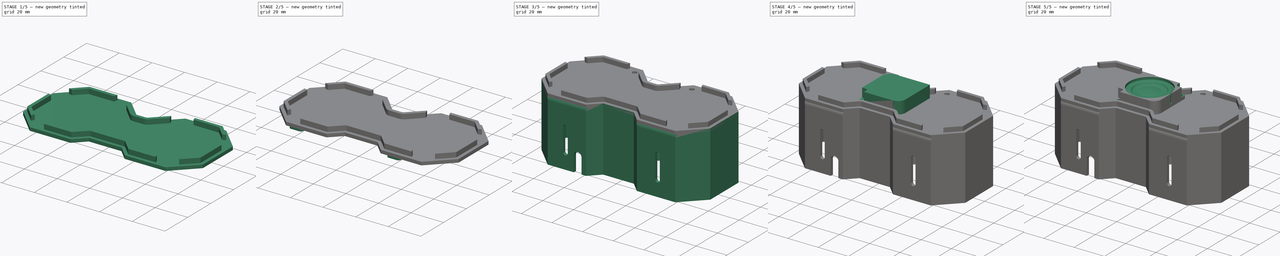
[diagram: build sequence overview — one tinted view per stage of 5, left to right]
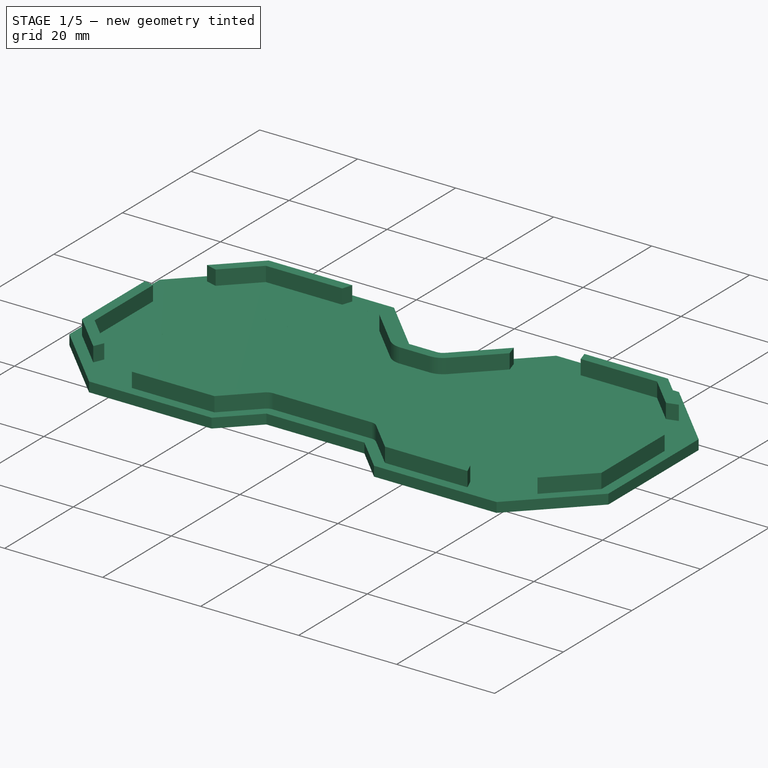
[diagram: stage 1 of 5 — iso view after this stage's code; geometry added in this stage tinted green]
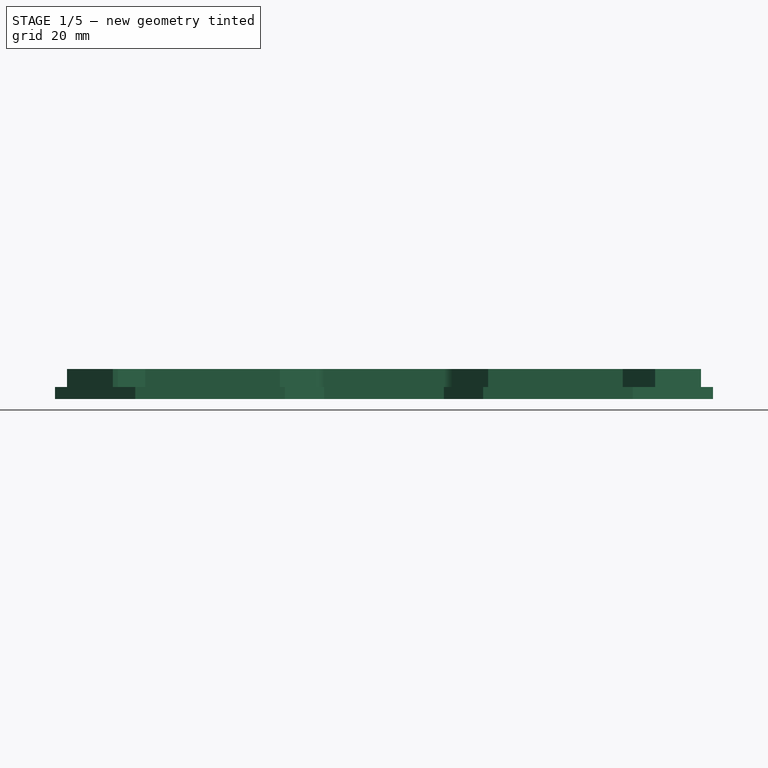
[diagram: stage 1 of 5 — front view after this stage's code; geometry added in this stage tinted green]
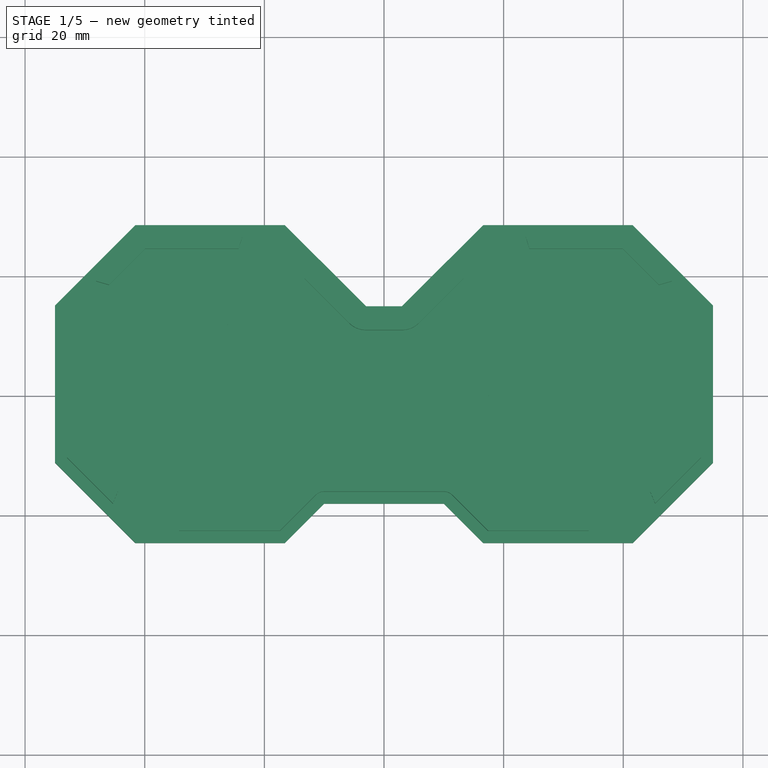
[diagram: stage 1 of 5 — top view after this stage's code; geometry added in this stage tinted green]
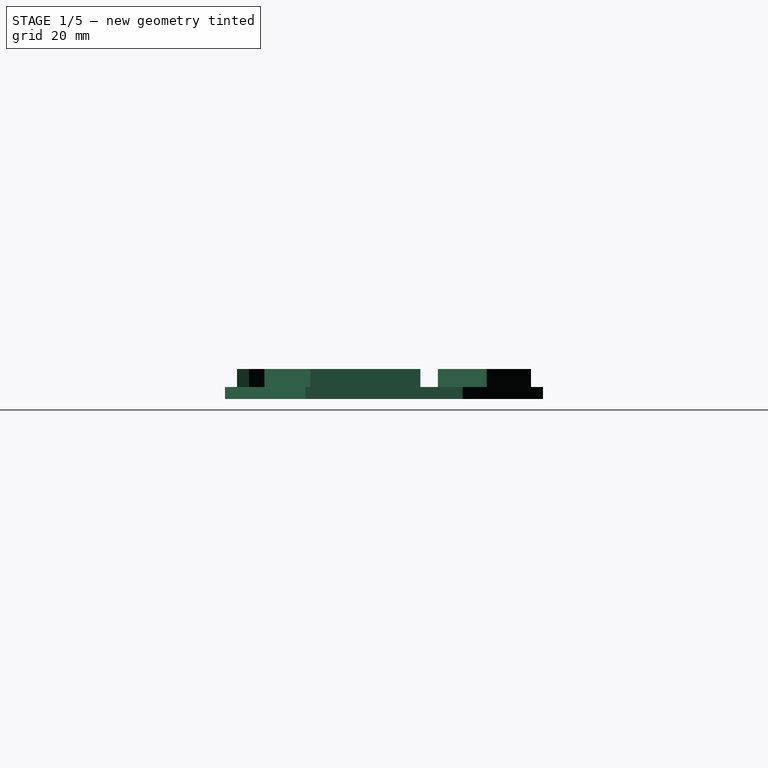
[diagram: stage 1 of 5 — right view after this stage's code; geometry added in this stage tinted green]
FCSTD DOCUMENT  (FreeCAD 1.0R39319 (Git))
Label: Speaker
License: All rights reserved
LicenseURL: https://en.wikipedia.org/wiki/All_rights_reserved
objects: Sketcher::SketchObject×16, PartDesign::Pocket×8, PartDesign::Pad×7, PartDesign::Fillet×5, PartDesign::PolarPattern×3, PartDesign::Body×3, PartDesign::Mirrored×2, PartDesign::Revolution×1, App::Link×1, PartDesign::Line×1, PartDesign::Chamfer×1, PartDesign::LinearPattern×1, App::LinkGroup×1
note: 114 computed .brp shape members not serialized (recipe doc carries the construction recipe); baked Part::Feature solids carry a one-line shape summary decoded from their .brp

FEATURE [PartDesign::Body] Body  label="Speaker"
  AllowCompound = false
  Group = -> [Sketch,Pad,Fillet,Sketch001,Pocket,Sketch002,Pocket001,Fillet001,Sketch003,Pocket002,PolarPattern,Sketch004,Pocket003,Sketch005,Revolution,Sketch006,Pocket004]
  Origin = -> Origin
  Placement = pos=(30,0,-10) rot=(0,0,1;3.14159rad)
  Tip = -> Pocket004
FEATURE [Sketcher::SketchObject] Sketch007
  ArcFitTolerance = 1e-06
  AttachmentSupport = -> [XY_Plane001]
  FullyConstrained = false
  MakeInternals = false
  MapMode = 5
  sketch-geometry (19):
    g0: LineSegment StartX=-41.5756 StartY=-24.5756 StartZ=0 EndX=-16.5756 EndY=-24.5756 EndZ=0
    g1: LineSegment StartX=55 StartY=-11.1512 StartZ=0 EndX=55 EndY=15.1512 EndZ=0
    g2: LineSegment StartX=41.5756 StartY=28.5756 StartZ=0 EndX=16.5756 EndY=28.5756 EndZ=0
    g3: LineSegment StartX=-55 StartY=15.1512 StartZ=0 EndX=-55 EndY=-11.1512 EndZ=0
    g4: GeomPoint [constr] X=0 Y=0 Z=0
    g5: Circle CenterX=-30 CenterY=0 CenterZ=0 NormalX=0 NormalY=0 NormalZ=1 AngleXU=0 Radius=12.5
    g6: Circle CenterX=30 CenterY=0 CenterZ=0 NormalX=0 NormalY=0 NormalZ=1 AngleXU=0 Radius=12.5
    g7: LineSegment StartX=-41.5756 StartY=28.5756 StartZ=0 EndX=-55 EndY=15.1512 EndZ=0
    g8: LineSegment StartX=-16.5756 StartY=28.5756 StartZ=0 EndX=-3 EndY=15 EndZ=0
    g9: LineSegment StartX=-3 StartY=15 StartZ=0 EndX=3 EndY=15 EndZ=0
    g10: LineSegment StartX=3 StartY=15 StartZ=0 EndX=16.5756 EndY=28.5756 EndZ=0
    g11: LineSegment StartX=41.5756 StartY=28.5756 StartZ=0 EndX=55 EndY=15.1512 EndZ=0
    g12: LineSegment StartX=-55 StartY=-11.1512 StartZ=0 EndX=-41.5756 EndY=-24.5756 EndZ=0
    g13: LineSegment StartX=41.5756 StartY=-24.5756 StartZ=0 EndX=55 EndY=-11.1512 EndZ=0
    g14: LineSegment StartX=-16.5756 StartY=-24.5756 StartZ=0 EndX=-10 EndY=-18 EndZ=0
    g15: LineSegment StartX=-10 StartY=-18 StartZ=0 EndX=10 EndY=-18 EndZ=0
    g16: LineSegment StartX=16.5756 StartY=-24.5756 StartZ=0 EndX=41.5756 EndY=-24.5756 EndZ=0
    g17: LineSegment StartX=-41.5756 StartY=28.5756 StartZ=0 EndX=-16.5756 EndY=28.5756 EndZ=0
    g18: LineSegment StartX=10 StartY=-18 StartZ=0 EndX=16.5756 EndY=-24.5756 EndZ=0
  constraints (54):
    c: Horizontal(g0)
    c: Horizontal(g2)
    c: Vertical(g1)
    c: Vertical(g3)
    c: Coincident(g4,g-1)
    c: PointOnObject(g5,g-1)
    c: Diameter(g5) = 25
    c: DistanceX(g5,g-1) = 30
    c: Diameter(g6) = 25
    c: PointOnObject(g6,g-1)
    c: DistanceX(g-1,g6) = 30
    c: Coincident(g8,g9)
    c: Horizontal(g9)
    c: Coincident(g9,g10)
    c: Coincident(g14,g15)
    c: Horizontal(g15)
    c: Coincident(g3,g7)
    c: Coincident(g3,g12)
    c: Coincident(g0,g12)
    c: Coincident(g2,g10)
    c: Coincident(g2,g11)
    c: Coincident(g1,g11)
    c: Coincident(g1,g13)
    c: Coincident(g16,g13)
    c: Coincident(g0,g14)
    c: Distance(g-2,g3) = 55
    c: Distance(g-2,g1) = 55
    c: Angle(g14,g0) = 2.35619
    c: Horizontal(g16)
    c: Angle(g0,g12) = 2.35619
    c: Angle(g13,g16) = 2.35619
    c: DistanceX(g0,g0) = 25
    c: DistanceX(g16,g16) = 25
    c: Horizontal(g2,g8)
    c: Coincident(g7,g17)
    c: Coincident(g17,g8)
    c: Horizontal(g17)
    c: Horizontal(g1,g3)
    c: Angle(g11,g1) = 2.35619
    c: Angle(g3,g7) = 2.35619
    c: Angle(g17,g8) = 2.35619
    c: Angle(g10,g2) = 2.35619
    c: Distance(g8,g-2) = 3
    c: Distance(g9,g-2) = 3
    c: Distance(g14,g-2) = 10
    c: DistanceX(g-1,g15) = 10
    c: Coincident(g15,g18)
    c: Coincident(g18,g16)
    c: Angle(g16,g18) = 2.35619
    c: Horizontal(g16,g0)
    c: Distance(g-1,g15) = 18
    c: Distance(g-1,g9) = 15
    c: DistanceX(g17,g17) = 25
    c: Vertical(g0,g7)
FEATURE [PartDesign::Pad] Pad001
  Direction = (0,0,1)
  Length = 2
  Length2 = 10
  Profile = -> Sketch007
  ReferenceAxis = -> Sketch007 [N_Axis]
  Refine = true
  Suppressed = false
  Type = 0
FEATURE [Sketcher::SketchObject] Sketch011
  ArcFitTolerance = 1e-06
  AttachmentSupport = -> [XY_Plane002]
  FullyConstrained = false
  MakeInternals = false
  MapMode = 5
  sketch-geometry (17):
    g0: LineSegment StartX=-41.5756 StartY=-24.5756 StartZ=0 EndX=-16.5756 EndY=-24.5756 EndZ=0
    g1: LineSegment StartX=55 StartY=-11.1512 StartZ=0 EndX=55 EndY=15.1512 EndZ=0
    g2: LineSegment StartX=41.5756 StartY=28.5756 StartZ=0 EndX=16.5756 EndY=28.5756 EndZ=0
    g3: LineSegment StartX=-55 StartY=15.1512 StartZ=0 EndX=-55 EndY=-11.1512 EndZ=0
    g4: GeomPoint [constr] X=0 Y=0 Z=0
    g5: LineSegment StartX=-41.5756 StartY=28.5756 StartZ=0 EndX=-55 EndY=15.1512 EndZ=0
    g6: LineSegment StartX=-16.5756 StartY=28.5756 StartZ=0 EndX=-3 EndY=15 EndZ=0
    g7: LineSegment StartX=-3 StartY=15 StartZ=0 EndX=3 EndY=15 EndZ=0
    g8: LineSegment StartX=3 StartY=15 StartZ=0 EndX=16.5756 EndY=28.5756 EndZ=0
    g9: LineSegment StartX=41.5756 StartY=28.5756 StartZ=0 EndX=55 EndY=15.1512 EndZ=0
    g10: LineSegment StartX=-55 StartY=-11.1512 StartZ=0 EndX=-41.5756 EndY=-24.5756 EndZ=0
    g11: LineSegment StartX=41.5756 StartY=-24.5756 StartZ=0 EndX=55 EndY=-11.1512 EndZ=0
    g12: LineSegment StartX=-16.5756 StartY=-24.5756 StartZ=0 EndX=-10 EndY=-18 EndZ=0
    g13: LineSegment StartX=-10 StartY=-18 StartZ=0 EndX=10 EndY=-18 EndZ=0
    g14: LineSegment StartX=16.5756 StartY=-24.5756 StartZ=0 EndX=41.5756 EndY=-24.5756 EndZ=0
    g15: LineSegment StartX=-41.5756 StartY=28.5756 StartZ=0 EndX=-16.5756 EndY=28.5756 EndZ=0
    g16: LineSegment StartX=10 StartY=-18 StartZ=0 EndX=16.5756 EndY=-24.5756 EndZ=0
  constraints (48):
    c: Horizontal(g0)
    c: Horizontal(g2)
    c: Vertical(g1)
    c: Vertical(g3)
    c: Coincident(g4,g-1)
    c: Coincident(g6,g7)
    c: Horizontal(g7)
    c: Coincident(g7,g8)
    c: Coincident(g12,g13)
    c: Horizontal(g13)
    c: Coincident(g3,g5)
    c: Coincident(g3,g10)
    c: Coincident(g0,g10)
    c: Coincident(g2,g8)
    c: Coincident(g2,g9)
    c: Coincident(g1,g9)
    c: Coincident(g1,g11)
    c: Coincident(g14,g11)
    c: Coincident(g0,g12)
    c: Distance(g-2,g3) = 55
    c: Distance(g-2,g1) = 55
    c: Angle(g12,g0) = 2.35619
    c: Horizontal(g14)
    c: Angle(g0,g10) = 2.35619
    c: Angle(g11,g14) = 2.35619
    c: DistanceX(g0,g0) = 25
    c: DistanceX(g14,g14) = 25
    c: Horizontal(g2,g6)
    c: Coincident(g5,g15)
    c: Coincident(g15,g6)
    c: Horizontal(g15)
    c: Horizontal(g1,g3)
    c: Angle(g9,g1) = 2.35619
    c: Angle(g3,g5) = 2.35619
    c: Angle(g15,g6) = 2.35619
    c: Angle(g8,g2) = 2.35619
    c: Distance(g6,g-2) = 3
    c: Distance(g7,g-2) = 3
    c: Distance(g12,g-2) = 10
    c: DistanceX(g-1,g13) = 10
    c: Coincident(g13,g16)
    c: Coincident(g16,g14)
    c: Angle(g14,g16) = 2.35619
    c: Horizontal(g14,g0)
    c: Distance(g-1,g13) = 18
    c: Distance(g-1,g7) = 15
    c: DistanceX(g15,g15) = 25
    c: Vertical(g0,g5)
FEATURE [PartDesign::Pad] Pad004
  Direction = (0,0,1)
  Length = 2
  Length2 = 10
  Profile = -> Sketch011
  ReferenceAxis = -> Sketch011 [N_Axis]
  Refine = true
  Suppressed = false
  Type = 0
FEATURE [Sketcher::SketchObject] Sketch012
  ArcFitTolerance = 1e-06
  AttachmentSupport = -> [Pad004]
  ExternalGeometry = -> [Pad004]
  FullyConstrained = false
  MakeInternals = false
  MapMode = 5
  Placement = pos=(0,0,2) rot=(0,0,1;0rad)
  sketch-geometry (40):
    g0: LineSegment StartX=-53 StartY=-10.3228 StartZ=0 EndX=-53 EndY=14.3228 EndZ=0
    g1: LineSegment StartX=-53 StartY=14.3228 StartZ=0 EndX=-40.7472 EndY=26.5756 EndZ=0
    g2: LineSegment StartX=-40.7472 StartY=26.5756 StartZ=0 EndX=-17.4041 EndY=26.5756 EndZ=0
    g3: LineSegment StartX=-17.4041 StartY=26.5756 StartZ=0 EndX=-4.41421 EndY=13.5858 EndZ=0
    g4: ArcOfCircle CenterX=-3 CenterY=15 CenterZ=0 NormalX=0 NormalY=0 NormalZ=1 AngleXU=2.35619 Radius=2 StartAngle=1.5708 EndAngle=2.35619
    g5: LineSegment StartX=-3 StartY=13 StartZ=0 EndX=3 EndY=13 EndZ=0
    g6: ArcOfCircle CenterX=3 CenterY=15 CenterZ=0 NormalX=0 NormalY=0 NormalZ=1 AngleXU=-3.14159 Radius=2 StartAngle=1.5708 EndAngle=2.35619
    g7: LineSegment StartX=4.41421 StartY=13.5858 StartZ=0 EndX=17.4041 EndY=26.5756 EndZ=0
    g8: LineSegment StartX=17.4041 StartY=26.5756 StartZ=0 EndX=40.7472 EndY=26.5756 EndZ=0
    g9: LineSegment StartX=40.7472 StartY=26.5756 StartZ=0 EndX=53 EndY=14.3228 EndZ=0
    g10: LineSegment StartX=53 StartY=14.3228 StartZ=0 EndX=53 EndY=-10.3228 EndZ=0
    g11: LineSegment StartX=53 StartY=-10.3228 StartZ=0 EndX=40.7472 EndY=-22.5756 EndZ=0
    g12: LineSegment StartX=40.7472 StartY=-22.5756 StartZ=0 EndX=17.4041 EndY=-22.5756 EndZ=0
    g13: LineSegment StartX=17.4041 StartY=-22.5756 StartZ=0 EndX=11.4142 EndY=-16.5858 EndZ=0
    g14: ArcOfCircle CenterX=10 CenterY=-18 CenterZ=0 NormalX=0 NormalY=0 NormalZ=1 AngleXU=-0.785398 Radius=2 StartAngle=1.5708 EndAngle=2.35619
    g15: LineSegment StartX=10 StartY=-16 StartZ=0 EndX=-10 EndY=-16 EndZ=0
    g16: ArcOfCircle CenterX=-10 CenterY=-18 CenterZ=0 NormalX=0 NormalY=0 NormalZ=1 AngleXU=0 Radius=2 StartAngle=1.5708 EndAngle=2.35619
    g17: LineSegment StartX=-11.4142 StartY=-16.5858 StartZ=0 EndX=-17.4041 EndY=-22.5756 EndZ=0
    g18: LineSegment StartX=-17.4041 StartY=-22.5756 StartZ=0 EndX=-40.7472 EndY=-22.5756 EndZ=0
    g19: LineSegment StartX=-40.7472 StartY=-22.5756 StartZ=0 EndX=-53 EndY=-10.3228 EndZ=0
    g20: LineSegment StartX=-51 StartY=13.4944 StartZ=0 EndX=-39.9188 EndY=24.5756 EndZ=0
    g21: LineSegment StartX=-39.9188 StartY=24.5756 StartZ=0 EndX=-18.2325 EndY=24.5756 EndZ=0
    g22: LineSegment StartX=-18.2325 StartY=24.5756 StartZ=0 EndX=-5.82843 EndY=12.1716 EndZ=0
    g23: ArcOfCircle CenterX=-3 CenterY=15 CenterZ=0 NormalX=0 NormalY=0 NormalZ=1 AngleXU=2.35619 Radius=4 StartAngle=1.5708 EndAngle=2.35619
    g24: LineSegment StartX=-3 StartY=11 StartZ=0 EndX=3 EndY=11 EndZ=0
    g25: ArcOfCircle CenterX=3 CenterY=15 CenterZ=0 NormalX=0 NormalY=0 NormalZ=1 AngleXU=-3.14159 Radius=4 StartAngle=1.5708 EndAngle=2.35619
    g26: LineSegment StartX=5.82843 StartY=12.1716 StartZ=0 EndX=18.2325 EndY=24.5756 EndZ=0
    g27: LineSegment StartX=18.2325 StartY=24.5756 StartZ=0 EndX=39.9188 EndY=24.5756 EndZ=0
    g28: LineSegment StartX=39.9188 StartY=24.5756 StartZ=0 EndX=51 EndY=13.4944 EndZ=0
    g29: LineSegment StartX=51 StartY=13.4944 StartZ=0 EndX=51 EndY=-9.49439 EndZ=0
    g30: LineSegment StartX=51 StartY=-9.49439 StartZ=0 EndX=39.9188 EndY=-20.5756 EndZ=0
    g31: LineSegment StartX=39.9188 StartY=-20.5756 StartZ=0 EndX=18.2325 EndY=-20.5756 EndZ=0
    g32: LineSegment StartX=18.2325 StartY=-20.5756 StartZ=0 EndX=12.8284 EndY=-15.1716 EndZ=0
    g33: ArcOfCircle CenterX=10 CenterY=-18 CenterZ=0 NormalX=0 NormalY=0 NormalZ=1 AngleXU=-0.785398 Radius=4 StartAngle=1.5708 EndAngle=2.35619
    g34: LineSegment StartX=10 StartY=-14 StartZ=0 EndX=-10 EndY=-14 EndZ=0
    g35: ArcOfCircle CenterX=-10 CenterY=-18 CenterZ=0 NormalX=0 NormalY=0 NormalZ=1 AngleXU=0 Radius=4 StartAngle=1.5708 EndAngle=2.35619
    g36: LineSegment StartX=-12.8284 StartY=-15.1716 StartZ=0 EndX=-18.2325 EndY=-20.5756 EndZ=0
    g37: LineSegment StartX=-18.2325 StartY=-20.5756 StartZ=0 EndX=-39.9188 EndY=-20.5756 EndZ=0
    g38: LineSegment StartX=-39.9188 StartY=-20.5756 StartZ=0 EndX=-51 EndY=-9.49439 EndZ=0
    g39: LineSegment StartX=-51 StartY=-9.49439 StartZ=0 EndX=-51 EndY=13.4944 EndZ=0
  constraints (40):
    c: Coincident(g0,g1)
    c: Coincident(g0,g19)
    c: Coincident(g1,g2)
    c: Coincident(g2,g3)
    c: Tangent(g3,g4) = -1.5708
    c: Tangent(g4,g5) = -1.5708
    c: Tangent(g5,g6) = -1.5708
    c: Tangent(g6,g7) = -1.5708
    c: Coincident(g7,g8)
    c: Coincident(g8,g9)
    c: Coincident(g9,g10)
    c: Coincident(g10,g11)
    c: Coincident(g11,g12)
    c: Coincident(g12,g13)
    c: Tangent(g13,g14) = -1.5708
    c: Tangent(g14,g15) = -1.5708
    c: Tangent(g15,g16) = -1.5708
    c: Tangent(g16,g17) = -1.5708
    c: Coincident(g17,g18)
    c: Coincident(g18,g19)
    c: Coincident(g20,g21)
    c: Coincident(g20,g39)
    c: Coincident(g21,g22)
    c: Tangent(g22,g23) = -1.5708
    c: Tangent(g23,g24) = -1.5708
    c: Tangent(g24,g25) = -1.5708
    c: Tangent(g25,g26) = -1.5708
    c: Coincident(g26,g27)
    c: Coincident(g27,g28)
    c: Coincident(g28,g29)
    c: Coincident(g29,g30)
    c: Coincident(g30,g31)
    c: Coincident(g31,g32)
    c: Tangent(g32,g33) = -1.5708
    c: Tangent(g33,g34) = -1.5708
    c: Tangent(g34,g35) = -1.5708
    c: Tangent(g35,g36) = -1.5708
    c: Coincident(g36,g37)
    c: Coincident(g37,g38)
    c: Coincident(g38,g39)
FEATURE [PartDesign::Pad] Pad005
  BaseFeature = -> Pad004
  Direction = (0,0,1)
  Length = 3
  Length2 = 10
  Profile = -> Sketch012
  ReferenceAxis = -> Sketch012 [N_Axis]
  Refine = true
  Suppressed = false
  Type = 0
FEATURE [PartDesign::Body] Body001  label="SpeakerHolder"
  AllowCompound = false
  Group = -> [Sketch007,Pad001,Sketch008,DatumLine,Pad002,Fillet002,Chamfer,PolarPattern001,LinearPattern,PolarPattern002,Sketch009,Pad003,Fillet003,Fillet004,Sketch010,Pocket005,Sketch013,Pad006,Mirrored]
  Origin = -> Origin001
  Tip = -> Mirrored
FEATURE [Sketcher::SketchObject] Sketch014
  ArcFitTolerance = 1e-06
  AttachmentSupport = -> [Pad005]
  ExternalGeometry = -> [Pad005]
  FullyConstrained = false
  MakeInternals = false
  MapMode = 5
  Placement = pos=(0,0,2) rot=(0,0,1;0rad)
  sketch-geometry (12):
    g0: ArcOfCircle CenterX=-17.4041 CenterY=26.5756 CenterZ=0 NormalX=0 NormalY=0 NormalZ=1 AngleXU=0 Radius=6 StartAngle=5.97861 EndAngle=9.12021
    g1: ArcOfCircle CenterX=-18.992 CenterY=21.524 CenterZ=0 NormalX=0 NormalY=0 NormalZ=1 AngleXU=0 Radius=6 StartAngle=2.83702 EndAngle=5.97861
    g2: LineSegment StartX=-11.6802 StartY=24.7763 StartZ=0 EndX=-13.2682 EndY=19.7247 EndZ=0
    g3: LineSegment StartX=-23.1279 StartY=28.3749 StartZ=0 EndX=-24.7159 EndY=23.3233 EndZ=0
    g4: ArcOfCircle CenterX=-53 CenterY=14.3228 CenterZ=0 NormalX=0 NormalY=0 NormalZ=1 AngleXU=0 Radius=6 StartAngle=1.2922 EndAngle=4.43379
    g5: ArcOfCircle CenterX=-45.9997 CenterY=12.3205 CenterZ=0 NormalX=0 NormalY=0 NormalZ=1 AngleXU=0 Radius=6 StartAngle=4.43379 EndAngle=7.57539
    g6: LineSegment StartX=-51.35 StartY=20.0915 StartZ=0 EndX=-44.3497 EndY=18.0892 EndZ=0
    g7: LineSegment StartX=-54.65 StartY=8.55416 StartZ=0 EndX=-47.6498 EndY=6.55185 EndZ=0
    g8: ArcOfCircle CenterX=-40.7472 CenterY=-22.5756 CenterZ=0 NormalX=0 NormalY=0 NormalZ=1 AngleXU=0 Radius=6 StartAngle=2.74413 EndAngle=5.88573
    g9: ArcOfCircle CenterX=-38.5348 CenterY=-17.3054 CenterZ=0 NormalX=0 NormalY=0 NormalZ=1 AngleXU=0 Radius=6 StartAngle=5.88573 EndAngle=9.02732
    g10: LineSegment StartX=-46.2795 StartY=-20.2532 StartZ=0 EndX=-44.067 EndY=-14.9829 EndZ=0
    g11: LineSegment StartX=-35.2149 StartY=-24.8981 StartZ=0 EndX=-33.0025 EndY=-19.6279 EndZ=0
  constraints (21):
    c: Tangent(g0,g2) = 1.5708
    c: Tangent(g0,g3) = -1.5708
    c: Tangent(g1,g2) = 1.5708
    c: Tangent(g1,g3) = -1.5708
    c: Equal(g0,g1)
    c: Coincident(g0,g-4)
    c: Tangent(g4,g6) = 1.5708
    c: Tangent(g4,g7) = -1.5708
    c: Tangent(g5,g6) = 1.5708
    c: Tangent(g5,g7) = -1.5708
    c: Equal(g4,g5)
    c: Coincident(g4,g-6)
    c: Tangent(g8,g10) = 1.5708
    c: Tangent(g8,g11) = -1.5708
    c: Tangent(g9,g10) = 1.5708
    c: Tangent(g9,g11) = -1.5708
    c: Equal(g8,g9)
    c: Coincident(g8,g-8)
    c: Radius(g4) = 6
    c: Radius(g8) = 6
    c: Radius(g0) = 6
FEATURE [PartDesign::Pocket] Pocket006
  BaseFeature = -> Pad005
  Direction = (0,0,-1)
  Length = 5
  Length2 = 5
  Profile = -> Sketch014
  ReferenceAxis = -> Sketch014 [N_Axis]
  Refine = true
  Reversed = true
  Suppressed = false
  Type = 0
FEATURE [Sketcher::SketchObject] Sketch015
  ArcFitTolerance = 1e-06
  AttachmentSupport = -> [Pocket006]
  FullyConstrained = false
  MakeInternals = false
  MapMode = 5
  Placement = pos=(0,0,0) rot=(1,0,0;3.14159rad)
  sketch-geometry (3):
    g0: Circle CenterX=-39.5291 CenterY=19.5265 CenterZ=0 NormalX=0 NormalY=0 NormalZ=1 AngleXU=0 Radius=1.5
    g1: Circle CenterX=-49.9766 CenterY=-13.0872 CenterZ=0 NormalX=0 NormalY=0 NormalZ=1 AngleXU=0 Radius=1.5
    g2: Circle CenterX=-18.6368 CenterY=-23.5886 CenterZ=0 NormalX=0 NormalY=0 NormalZ=1 AngleXU=0 Radius=1.5
  constraints (3):
    c: Diameter(g0) = 3
    c: Diameter(g1) = 3
    c: Diameter(g2) = 3
FEATURE [PartDesign::Pocket] Pocket007
  BaseFeature = -> Pocket006
  Direction = (0,0,1)
  Length = 5
  Length2 = 5
  Profile = -> Sketch015
  ReferenceAxis = -> Sketch015 [N_Axis]
  Refine = true
  Suppressed = false
  Type = 0
FEATURE [PartDesign::Mirrored] Mirrored001
  BaseFeature = -> Pocket007
  MirrorPlane = -> Sketch014 [V_Axis]
  Originals = -> [Pocket006,Pocket007]
  Refine = true
  Suppressed = false
  TransformMode = 0
FEATURE [PartDesign::Body] Body002  label="SpeakerLid"
  AllowCompound = false
  Group = -> [Sketch011,Pad004,Sketch012,Pad005,Sketch014,Pocket006,Sketch015,Pocket007,Mirrored001]
  Origin = -> Origin002
  Placement = pos=(0,0,-42) rot=(0,0,1;0rad)
  Tip = -> Mirrored001
FEATURE [App::LinkGroup] LinkGroup  label="SpeakerGroup"
  ElementList = -> [Body,Body001,Link,Body002]
  LinkMode = 0
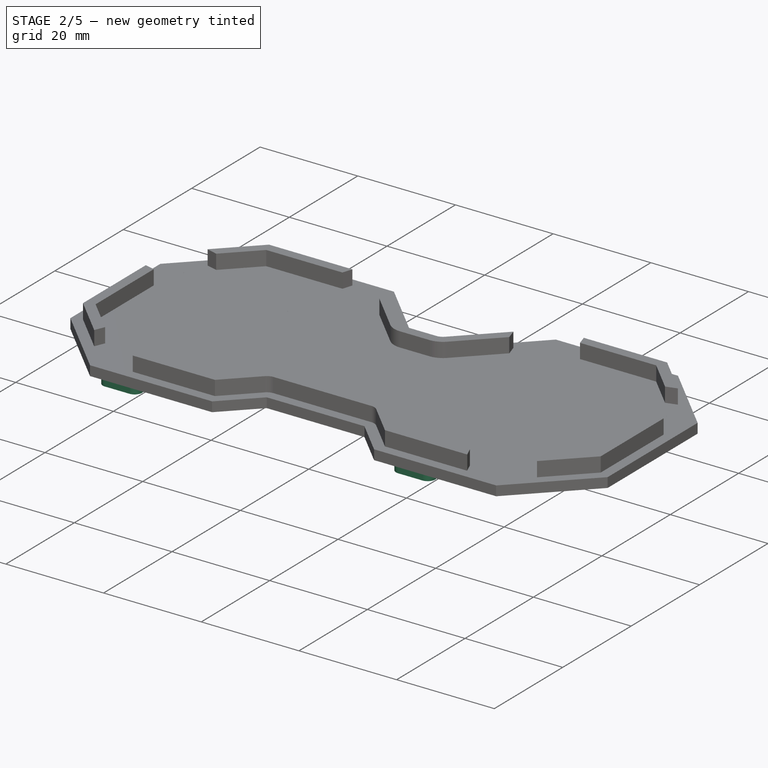
[diagram: stage 2 of 5 — iso view after this stage's code; geometry added in this stage tinted green]
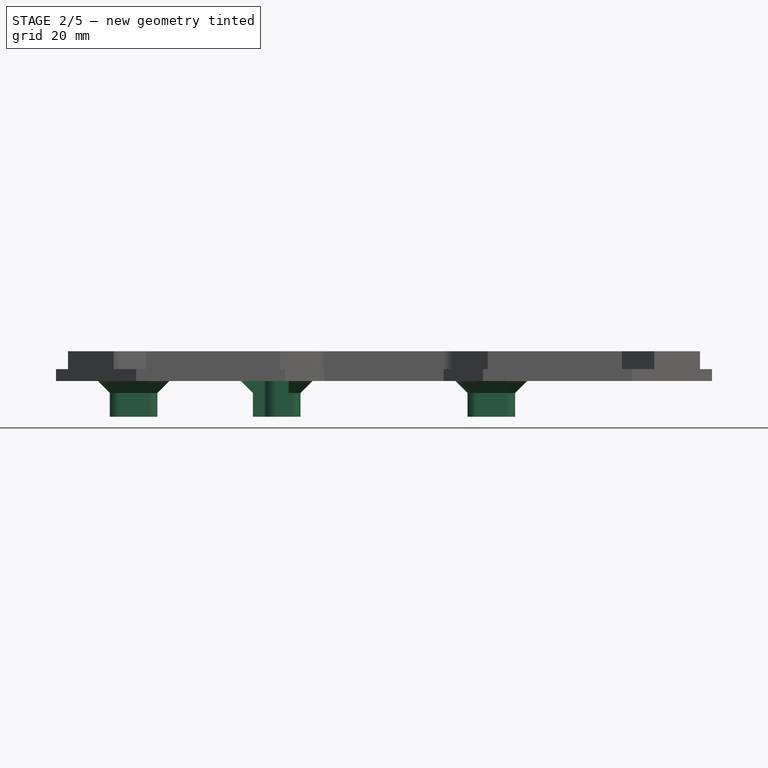
[diagram: stage 2 of 5 — front view after this stage's code; geometry added in this stage tinted green]
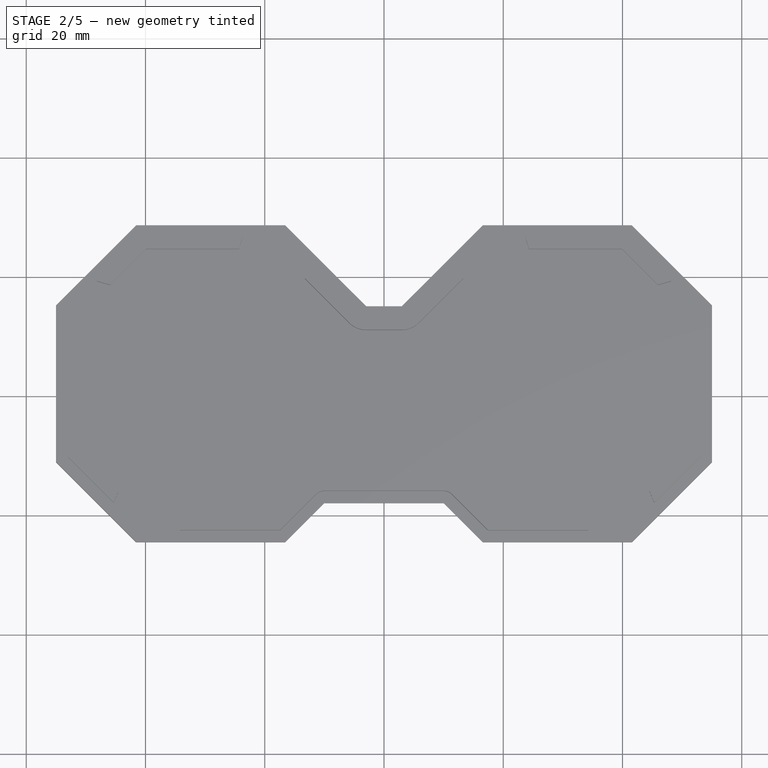
[diagram: stage 2 of 5 — top view after this stage's code; geometry added in this stage tinted green]
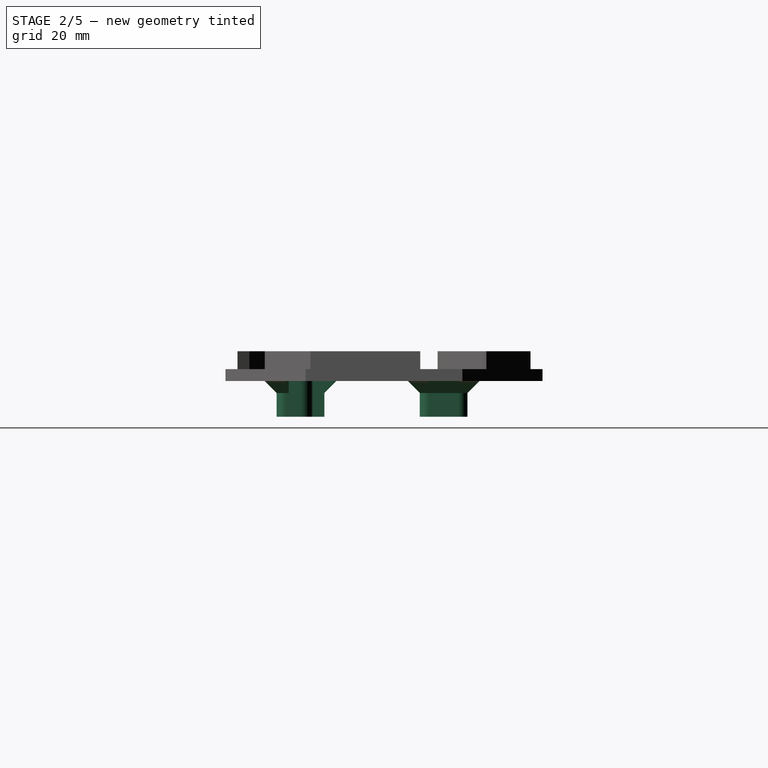
[diagram: stage 2 of 5 — right view after this stage's code; geometry added in this stage tinted green]
FEATURE [App::Link] Link  label="Speaker001"
  LinkPlacement = pos=(-30,-3.335e-13,-10) rot=(0,0,1.01235;0rad)
  LinkedObject = -> Body
  Placement = pos=(-30,-3.335e-13,-10) rot=(0,0,1.01235;0rad)
FEATURE [Sketcher::SketchObject] Sketch008
  ArcFitTolerance = 1e-06
  AttachmentSupport = -> [Pad001]
  ExternalGeometry = -> [Pad001]
  FullyConstrained = true
  MakeInternals = false
  MapMode = 5
  Placement = pos=(0,0,0) rot=(1,0,0;3.14159rad)
  sketch-geometry (10):
    g0: ArcOfCircle CenterX=-42 CenterY=12 CenterZ=0 NormalX=0 NormalY=0 NormalZ=1 AngleXU=0 Radius=2 StartAngle=4.71239 EndAngle=6.28319
    g1: LineSegment StartX=-40 StartY=12 StartZ=0 EndX=-40 EndY=14 EndZ=0
    g2: LineSegment StartX=-42 StartY=10 StartZ=0 EndX=-44 EndY=10 EndZ=0
    g3: LineSegment StartX=-44 StartY=10 StartZ=0 EndX=-44 EndY=8 EndZ=0
    g4: LineSegment StartX=-44 StartY=8 StartZ=0 EndX=-46 EndY=8 EndZ=0
    g5: LineSegment StartX=-46 StartY=8 StartZ=0 EndX=-46 EndY=16 EndZ=0
    g6: LineSegment StartX=-46 StartY=16 StartZ=0 EndX=-38 EndY=16 EndZ=0
    g7: LineSegment StartX=-38 StartY=16 StartZ=0 EndX=-38 EndY=14 EndZ=0
    g8: LineSegment StartX=-38 StartY=14 StartZ=0 EndX=-40 EndY=14 EndZ=0
    g9: Circle CenterX=-42 CenterY=12 CenterZ=0 NormalX=0 NormalY=0 NormalZ=1 AngleXU=0 Radius=0.75
  constraints (28):
    c: Radius(g0) = 2
    c: Angle(g0) = 1.5708
    c: Horizontal(g0,g0)
    c: DistanceX(g0,g-1) = 42
    c: Distance(g0,g-1) = 12
    c: Tangent(g0,g1) = -1.5708
    c: DistanceY(g1,g1) = 2
    c: Tangent(g0,g2) = 1.5708
    c: Coincident(g2,g3)
    c: Vertical(g3)
    c: Coincident(g3,g4)
    c: Horizontal(g4)
    c: Coincident(g4,g5)
    c: Vertical(g5)
    c: Coincident(g5,g6)
    c: Horizontal(g6)
    c: Coincident(g6,g7)
    c: Coincident(g7,g8)
    c: Coincident(g8,g1)
    c: Horizontal(g8)
    c: Vertical(g7)
    c: Distance(g8,g8) = 2
    c: DistanceY(g7,g7) = 2
    c: DistanceY(g3,g3) = 2
    c: DistanceX(g4,g4) = 2
    c: DistanceX(g2,g2) = 2
    c: Diameter(g9) = 1.5
    c: Coincident(g9,g0)
FEATURE [PartDesign::Line] DatumLine
  AttacherType = Attacher::AttachEngineLine
  AttachmentSupport = -> [Pad001]
  Length = 20
  MapMode = 19
  Placement = pos=(-30,0,2) rot=(0,0,1;0rad)
  ResizeMode = 0
FEATURE [PartDesign::Pad] Pad002
  BaseFeature = -> Pad001
  Direction = (0,0,-1)
  Length = 6
  Length2 = 10
  Profile = -> Sketch008
  ReferenceAxis = -> Sketch008 [N_Axis]
  Refine = true
  Suppressed = false
  Type = 0
FEATURE [PartDesign::Fillet] Fillet002
  Base = -> Pad002 [Edge71,Edge69,Edge67]
  BaseFeature = -> Pad002
  Radius = 1.5
  Refine = true
  SupportTransform = false
  Suppressed = false
  UseAllEdges = false
FEATURE [PartDesign::Chamfer] Chamfer
  Angle = 45
  Base = -> Fillet002 [Edge8]
  BaseFeature = -> Fillet002
  ChamferType = 0
  FlipDirection = false
  Refine = true
  Size = 2
  Size2 = 1
  SupportTransform = false
  Suppressed = false
  UseAllEdges = false
FEATURE [PartDesign::PolarPattern] PolarPattern001
  Angle = 360
  Axis = -> DatumLine
  BaseFeature = -> Chamfer
  Mode = 0
  Occurrences = 2
  Offset = 120
  Originals = -> [Pad002,Fillet002,Chamfer]
  Refine = true
  Suppressed = false
  TransformMode = 0
FEATURE [PartDesign::LinearPattern] LinearPattern
  BaseFeature = -> PolarPattern001
  Direction = -> X_Axis001
  Length = 60
  Mode = 1
  Occurrences = 2
  Offset = 60
  Originals = -> [Pad002,Fillet002,Chamfer]
  Refine = true
  Suppressed = false
  TransformMode = 0
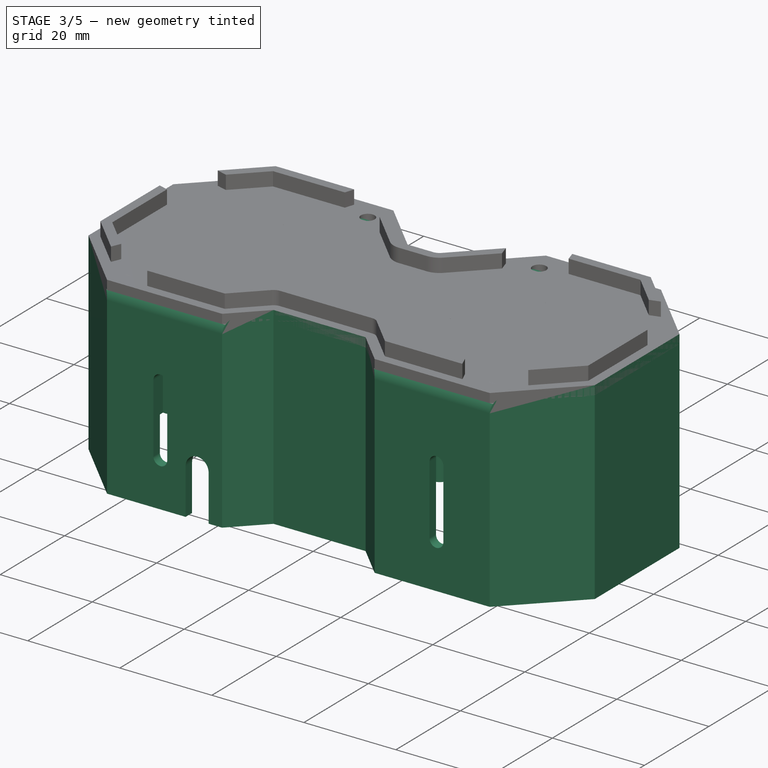
[diagram: stage 3 of 5 — iso view after this stage's code; geometry added in this stage tinted green]
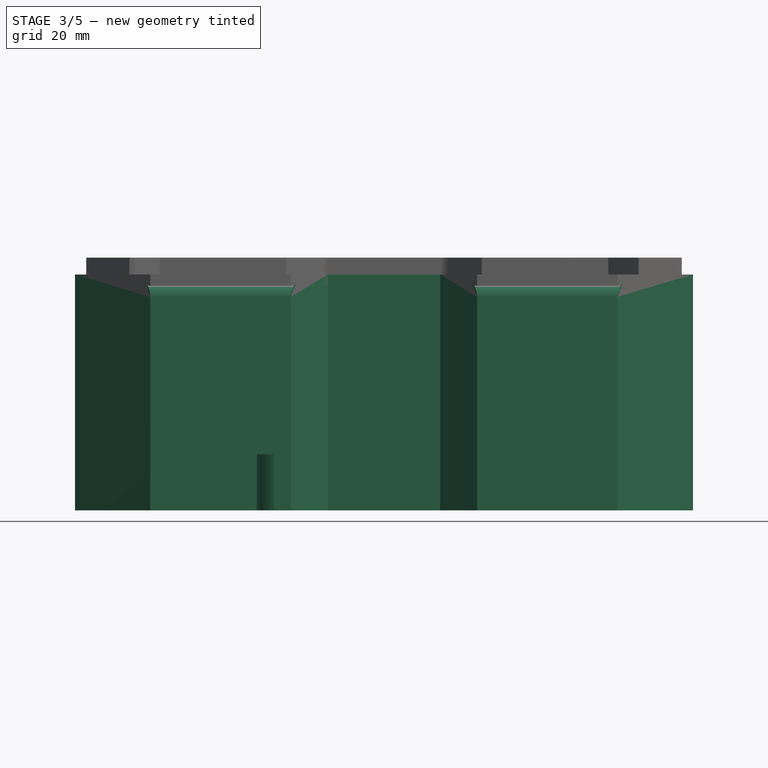
[diagram: stage 3 of 5 — front view after this stage's code; geometry added in this stage tinted green]
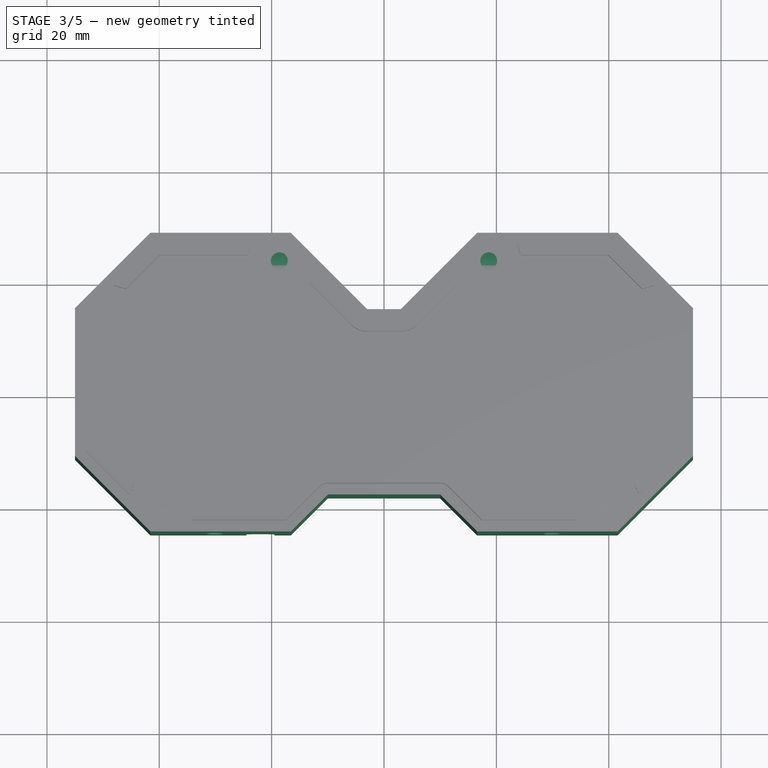
[diagram: stage 3 of 5 — top view after this stage's code; geometry added in this stage tinted green]
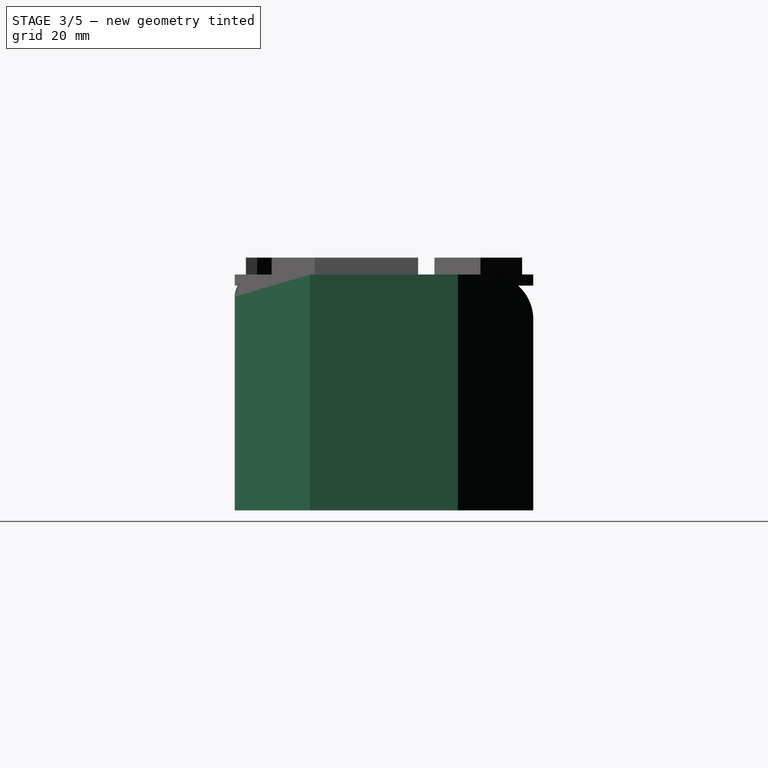
[diagram: stage 3 of 5 — right view after this stage's code; geometry added in this stage tinted green]
FEATURE [PartDesign::PolarPattern] PolarPattern002
  Angle = 360
  Axis = -> Sketch008 [N_Axis]
  BaseFeature = -> LinearPattern
  Mode = 0
  Occurrences = 2
  Offset = 120
  Originals = -> [Pad002,Fillet002,Chamfer]
  Refine = true
  Suppressed = false
  TransformMode = 0
FEATURE [Sketcher::SketchObject] Sketch009
  ArcFitTolerance = 1e-06
  AttachmentSupport = -> [PolarPattern002]
  ExternalGeometry = -> [Sketch007]
  FullyConstrained = false
  MakeInternals = false
  MapMode = 5
  Placement = pos=(0,0,0) rot=(1,0,0;3.14159rad)
  sketch-geometry (36):
    g0: LineSegment StartX=-41.5756 StartY=24.5756 StartZ=0 EndX=-16.5756 EndY=24.5756 EndZ=0
    g1: LineSegment StartX=-16.5756 StartY=24.5756 StartZ=0 EndX=-10 EndY=18 EndZ=0
    g2: LineSegment StartX=-10 StartY=18 StartZ=0 EndX=10 EndY=18 EndZ=0
    g3: LineSegment StartX=10 StartY=18 StartZ=0 EndX=16.5756 EndY=24.5756 EndZ=0
    g4: LineSegment StartX=16.5756 StartY=24.5756 StartZ=0 EndX=41.5756 EndY=24.5756 EndZ=0
    g5: LineSegment StartX=41.5756 StartY=24.5756 StartZ=0 EndX=55 EndY=11.1512 EndZ=0
    g6: LineSegment StartX=55 StartY=11.1512 StartZ=0 EndX=55 EndY=-15.1512 EndZ=0
    g7: LineSegment StartX=55 StartY=-15.1512 StartZ=0 EndX=41.5756 EndY=-28.5756 EndZ=0
    g8: LineSegment StartX=41.5756 StartY=-28.5756 StartZ=0 EndX=16.5756 EndY=-28.5756 EndZ=0
    g9: LineSegment StartX=16.5756 StartY=-28.5756 StartZ=0 EndX=3 EndY=-15 EndZ=0
    g10: LineSegment StartX=3 StartY=-15 StartZ=0 EndX=-3 EndY=-15 EndZ=0
    g11: LineSegment StartX=-3 StartY=-15 StartZ=0 EndX=-16.5756 EndY=-28.5756 EndZ=0
    g12: LineSegment StartX=-16.5756 StartY=-28.5756 StartZ=0 EndX=-41.5756 EndY=-28.5756 EndZ=0
    g13: LineSegment StartX=-41.5756 StartY=-28.5756 StartZ=0 EndX=-55 EndY=-15.1512 EndZ=0
    g14: LineSegment StartX=-55 StartY=-15.1512 StartZ=0 EndX=-55 EndY=11.1512 EndZ=0
    g15: LineSegment StartX=-55 StartY=11.1512 StartZ=0 EndX=-41.5756 EndY=24.5756 EndZ=0
    g16: LineSegment StartX=-53 StartY=10.3228 StartZ=0 EndX=-40.7472 EndY=22.5756 EndZ=0
    g17: LineSegment StartX=-40.7472 StartY=22.5756 StartZ=0 EndX=-17.4041 EndY=22.5756 EndZ=0
    g18: LineSegment StartX=-17.4041 StartY=22.5756 StartZ=0 EndX=-11.4142 EndY=16.5858 EndZ=0
    g19: ArcOfCircle CenterX=-10 CenterY=18 CenterZ=0 NormalX=0 NormalY=0 NormalZ=1 AngleXU=2.35619 Radius=2 StartAngle=1.5708 EndAngle=2.35619
    g20: LineSegment StartX=-10 StartY=16 StartZ=0 EndX=10 EndY=16 EndZ=0
    g21: ArcOfCircle CenterX=10 CenterY=18 CenterZ=0 NormalX=0 NormalY=0 NormalZ=1 AngleXU=-3.14159 Radius=2 StartAngle=1.5708 EndAngle=2.35619
    g22: LineSegment StartX=11.4142 StartY=16.5858 StartZ=0 EndX=17.4041 EndY=22.5756 EndZ=0
    g23: LineSegment StartX=17.4041 StartY=22.5756 StartZ=0 EndX=40.7472 EndY=22.5756 EndZ=0
    g24: LineSegment StartX=40.7472 StartY=22.5756 StartZ=0 EndX=53 EndY=10.3228 EndZ=0
    g25: LineSegment StartX=53 StartY=10.3228 StartZ=0 EndX=53 EndY=-14.3228 EndZ=0
    g26: LineSegment StartX=53 StartY=-14.3228 StartZ=0 EndX=40.7472 EndY=-26.5756 EndZ=0
    g27: LineSegment StartX=40.7472 StartY=-26.5756 StartZ=0 EndX=17.4041 EndY=-26.5756 EndZ=0
    g28: LineSegment StartX=17.4041 StartY=-26.5756 StartZ=0 EndX=4.41421 EndY=-13.5858 EndZ=0
    g29: ArcOfCircle CenterX=3 CenterY=-15 CenterZ=0 NormalX=0 NormalY=0 NormalZ=1 AngleXU=-0.785398 Radius=2 StartAngle=1.5708 EndAngle=2.35619
    g30: LineSegment StartX=3 StartY=-13 StartZ=0 EndX=-3 EndY=-13 EndZ=0
    g31: ArcOfCircle CenterX=-3 CenterY=-15 CenterZ=0 NormalX=0 NormalY=0 NormalZ=1 AngleXU=0 Radius=2 StartAngle=1.5708 EndAngle=2.35619
    g32: LineSegment StartX=-4.41421 StartY=-13.5858 StartZ=0 EndX=-17.4041 EndY=-26.5756 EndZ=0
    g33: LineSegment StartX=-17.4041 StartY=-26.5756 StartZ=0 EndX=-40.7472 EndY=-26.5756 EndZ=0
    g34: LineSegment StartX=-40.7472 StartY=-26.5756 StartZ=0 EndX=-53 EndY=-14.3228 EndZ=0
    g35: LineSegment StartX=-53 StartY=-14.3228 StartZ=0 EndX=-53 EndY=10.3228 EndZ=0
  constraints (52):
    c: Coincident(g-4,g0)
    c: Coincident(g0,g-5)
    c: Coincident(g0,g1)
    c: Coincident(g1,g-6)
    c: Coincident(g1,g2)
    c: Coincident(g2,g-7)
    c: Coincident(g2,g3)
    c: Coincident(g3,g-8)
    c: Coincident(g3,g4)
    c: Coincident(g4,g-9)
    c: Coincident(g4,g5)
    c: Coincident(g5,g-10)
    c: Coincident(g5,g6)
    c: Coincident(g6,g-11)
    c: Coincident(g6,g7)
    c: Coincident(g7,g-12)
    c: Coincident(g7,g8)
    c: Coincident(g8,g-13)
    c: Coincident(g8,g9)
    c: Coincident(g9,g-14)
    c: Coincident(g9,g10)
    c: Coincident(g10,g-15)
    c: Coincident(g10,g11)
    c: Coincident(g11,g-18)
    c: Coincident(g11,g12)
    c: Coincident(g12,g-18)
    c: Coincident(g12,g13)
    c: Coincident(g13,g-17)
    c: Coincident(g13,g14)
    c: Coincident(g14,g-16)
    c: Coincident(g14,g15)
    c: Coincident(g15,g0)
    c: Coincident(g16,g17)
    c: Coincident(g16,g35)
    c: Coincident(g17,g18)
    c: Tangent(g18,g19) = -1.5708
    c: Tangent(g19,g20) = -1.5708
    c: Tangent(g20,g21) = -1.5708
    c: Tangent(g21,g22) = -1.5708
    c: Coincident(g22,g23)
    c: Coincident(g23,g24)
    c: Coincident(g24,g25)
    c: Coincident(g25,g26)
    c: Coincident(g26,g27)
    c: Coincident(g27,g28)
    c: Tangent(g28,g29) = -1.5708
    c: Tangent(g29,g30) = -1.5708
    c: Tangent(g30,g31) = -1.5708
    c: Tangent(g31,g32) = -1.5708
    c: Coincident(g32,g33)
    c: Coincident(g33,g34)
    c: Coincident(g34,g35)
FEATURE [PartDesign::Pad] Pad003
  BaseFeature = -> PolarPattern002
  Direction = (0,0,-1)
  Length = 40
  Length2 = 10
  Profile = -> Sketch009
  ReferenceAxis = -> Sketch009 [N_Axis]
  Refine = true
  Suppressed = false
  Type = 0
FEATURE [PartDesign::Fillet] Fillet003
  Base = -> Pad003 [Edge145,Edge141,Edge75,Edge63]
  BaseFeature = -> Pad003
  Radius = 8
  Refine = true
  SupportTransform = false
  Suppressed = false
  UseAllEdges = false
FEATURE [PartDesign::Fillet] Fillet004
  Base = -> Fillet003 [Edge119,Edge127,Edge76,Edge64]
  BaseFeature = -> Fillet003
  Radius = 4
  Refine = true
  SupportTransform = false
  Suppressed = false
  UseAllEdges = false
FEATURE [Sketcher::SketchObject] Sketch010
  ArcFitTolerance = 1e-06
  AttachmentSupport = -> [Fillet004]
  FullyConstrained = true
  MakeInternals = false
  MapMode = 5
  Placement = pos=(0,-22.5756,0) rot=(0,0.707107,0.707107;3.14159rad)
  sketch-geometry (12):
    g0: ArcOfCircle CenterX=-30 CenterY=-15 CenterZ=0 NormalX=0 NormalY=0 NormalZ=1 AngleXU=0 Radius=1.5 StartAngle=1.055e-13 EndAngle=3.14159
    g1: ArcOfCircle CenterX=-30 CenterY=-30 CenterZ=0 NormalX=0 NormalY=0 NormalZ=1 AngleXU=0 Radius=1.5 StartAngle=3.14159 EndAngle=6.28319
    g2: LineSegment StartX=-28.5 StartY=-15 StartZ=0 EndX=-28.5 EndY=-30 EndZ=0
    g3: LineSegment StartX=-31.5 StartY=-15 StartZ=0 EndX=-31.5 EndY=-30 EndZ=0
    g4: ArcOfCircle CenterX=30 CenterY=-15 CenterZ=0 NormalX=0 NormalY=0 NormalZ=1 AngleXU=0 Radius=1.5 StartAngle=0 EndAngle=3.14159
    g5: ArcOfCircle CenterX=30 CenterY=-30 CenterZ=0 NormalX=0 NormalY=0 NormalZ=1 AngleXU=0 Radius=1.5 StartAngle=3.14159 EndAngle=6.28319
    g6: LineSegment StartX=31.5 StartY=-15 StartZ=0 EndX=31.5 EndY=-30 EndZ=0
    g7: LineSegment StartX=28.5 StartY=-15 StartZ=0 EndX=28.5 EndY=-30 EndZ=0
    g8: ArcOfCircle CenterX=22 CenterY=-30 CenterZ=0 NormalX=0 NormalY=0 NormalZ=1 AngleXU=0 Radius=2.5 StartAngle=1e-16 EndAngle=3.14159
    g9: ArcOfCircle CenterX=22 CenterY=-40 CenterZ=0 NormalX=0 NormalY=0 NormalZ=1 AngleXU=0 Radius=2.5 StartAngle=3.14159 EndAngle=6.28319
    g10: LineSegment StartX=24.5 StartY=-30 StartZ=0 EndX=24.5 EndY=-40 EndZ=0
    g11: LineSegment StartX=19.5 StartY=-30 StartZ=0 EndX=19.5 EndY=-40 EndZ=0
  constraints (30):
    c: Tangent(g0,g2) = 1.5708
    c: Tangent(g0,g3) = -1.5708
    c: Tangent(g1,g2) = 1.5708
    c: Tangent(g1,g3) = -1.5708
    c: Equal(g0,g1)
    c: Vertical(g3)
    c: Distance(g0,g1) = 15
    c: Radius(g0) = 1.5
    c: Tangent(g4,g6) = 1.5708
    c: Tangent(g4,g7) = -1.5708
    c: Tangent(g5,g6) = 1.5708
    c: Tangent(g5,g7) = -1.5708
    c: Equal(g4,g5)
    c: Vertical(g7)
    c: Distance(g4,g5) = 15
    c: Radius(g4) = 1.5
    c: Horizontal(g4,g0)
    c: Distance(g4,g-1) = 15
    c: Distance(g5,g-2) = 30
    c: DistanceX(g1,g-1) = 30
    c: Tangent(g8,g10) = 1.5708
    c: Tangent(g8,g11) = -1.5708
    c: Tangent(g9,g10) = 1.5708
    c: Tangent(g9,g11) = -1.5708
    c: Equal(g8,g9)
    c: Vertical(g11)
    c: Distance(g8,g9) = 10
    c: Radius(g8) = 2.5
    c: DistanceY(g8,g-1) = 30
    c: DistanceX(g-1,g8) = 22
FEATURE [PartDesign::Pocket] Pocket005
  BaseFeature = -> Fillet004
  Direction = (0,-1,2e-16)
  Length = 5
  Length2 = 5
  Profile = -> Sketch010
  ReferenceAxis = -> Sketch010 [N_Axis]
  Refine = true
  Suppressed = false
  Type = 0
FEATURE [Sketcher::SketchObject] Sketch013
  ArcFitTolerance = 1e-06
  AttachmentSupport = -> [Pocket005]
  ExternalGeometry = -> [Pocket005]
  FullyConstrained = false
  MakeInternals = false
  MapMode = 5
  Placement = pos=(0,0,-40) rot=(1,0,0;3.14159rad)
  sketch-geometry (18):
    g0: ArcOfCircle CenterX=-39.5046 CenterY=19.5756 CenterZ=0 NormalX=0 NormalY=0 NormalZ=1 AngleXU=0 Radius=4 StartAngle=3.92699 EndAngle=6.28319
    g1: LineSegment StartX=-42.333 StartY=16.7472 StartZ=0 EndX=-44.4543 EndY=18.8685 EndZ=0
    g2: LineSegment StartX=-35.5046 StartY=19.5756 StartZ=0 EndX=-35.5046 EndY=22.5756 EndZ=0
    g3: LineSegment StartX=-44.4543 StartY=18.8685 StartZ=0 EndX=-40.7472 EndY=22.5756 EndZ=0
    g4: LineSegment StartX=-40.7472 StartY=22.5756 StartZ=0 EndX=-35.5046 EndY=22.5756 EndZ=0
    g5: Circle CenterX=-39.5046 CenterY=19.5756 CenterZ=0 NormalX=0 NormalY=0 NormalZ=1 AngleXU=0 Radius=1.5
    g6: ArcOfCircle CenterX=-50 CenterY=-13.0802 CenterZ=0 NormalX=0 NormalY=0 NormalZ=1 AngleXU=0 Radius=4 StartAngle=5.49779 EndAngle=7.85398
    g7: LineSegment StartX=-47.1716 StartY=-15.9086 StartZ=0 EndX=-49.2929 EndY=-18.0299 EndZ=0
    g8: LineSegment StartX=-50 StartY=-9.08018 StartZ=0 EndX=-53 EndY=-9.08018 EndZ=0
    g9: LineSegment StartX=-53 StartY=-9.08018 StartZ=0 EndX=-53 EndY=-14.3228 EndZ=0
    g10: LineSegment StartX=-53 StartY=-14.3228 StartZ=0 EndX=-49.2929 EndY=-18.0299 EndZ=0
    g11: Circle CenterX=-50 CenterY=-13.0802 CenterZ=0 NormalX=0 NormalY=0 NormalZ=1 AngleXU=0 Radius=1.5
    g12: ArcOfCircle CenterX=-18.6467 CenterY=-23.5756 CenterZ=0 NormalX=0 NormalY=0 NormalZ=1 AngleXU=0 Radius=4 StartAngle=0.785398 EndAngle=3.14159
    g13: LineSegment StartX=-15.8183 StartY=-20.7472 StartZ=0 EndX=-13.6969 EndY=-22.8685 EndZ=0
    g14: LineSegment StartX=-22.6467 StartY=-23.5756 StartZ=0 EndX=-22.6467 EndY=-26.5756 EndZ=0
    g15: LineSegment StartX=-22.6467 StartY=-26.5756 StartZ=0 EndX=-17.4041 EndY=-26.5756 EndZ=0
    g16: LineSegment StartX=-17.4041 StartY=-26.5756 StartZ=0 EndX=-13.6969 EndY=-22.8685 EndZ=0
    g17: Circle CenterX=-18.6467 CenterY=-23.5756 CenterZ=0 NormalX=0 NormalY=0 NormalZ=1 AngleXU=0 Radius=1.5
  constraints (48):
    c: Radius(g0) = 4
    c: Coincident(g1,g0)
    c: PointOnObject(g1,g-6)
    c: Coincident(g2,g0)
    c: PointOnObject(g2,g-3)
    c: Vertical(g2)
    c: Angle(g1,g-6) = 1.5708
    c: Horizontal(g0,g0)
    c: DistanceY(g2,g2) = 3
    c: Coincident(g3,g1)
    c: Coincident(g3,g-6)
    c: Coincident(g4,g3)
    c: Coincident(g4,g2)
    c: Diameter(g5) = 3
    c: Coincident(g5,g0)
    c: Radius(g6) = 4
    c: Coincident(g7,g6)
    c: PointOnObject(g7,g-7)
    c: Coincident(g8,g6)
    c: PointOnObject(g8,g-4)
    c: Coincident(g8,g9)
    c: Coincident(g9,g-7)
    c: Coincident(g9,g10)
    c: Coincident(g10,g7)
    c: Horizontal(g8)
    c: Angle(g7,g10) = 1.5708
    c: Distance(g8,g8) = 3
    c: Diameter(g11) = 3
    c: Coincident(g11,g6)
    c: Coincident(g13,g12)
    c: PointOnObject(g13,g-8)
    c: Coincident(g14,g12)
    c: PointOnObject(g14,g-5)
    c: Vertical(g14)
    c: Coincident(g15,g14)
    c: Coincident(g15,g-8)
    c: Coincident(g16,g15)
    c: Coincident(g16,g13)
    c: Angle(g13,g16) = 1.5708
    c: Radius(g12) = 4
    c: Vertical(g6,g6)
    c: Distance(g1,g1) = 3
    c: Distance(g7,g7) = 3
    c: DistanceY(g14,g14) = 3
    c: Distance(g13,g13) = 3
    c: Horizontal(g12,g12)
    c: Diameter(g17) = 3
    c: Coincident(g17,g12)
FEATURE [PartDesign::Pad] Pad006
  BaseFeature = -> Pocket005
  Direction = (0,0,-1)
  Length = 10
  Length2 = 10
  Profile = -> Sketch013
  ReferenceAxis = -> Sketch013 [N_Axis]
  Refine = true
  Reversed = true
  Suppressed = false
  Type = 0
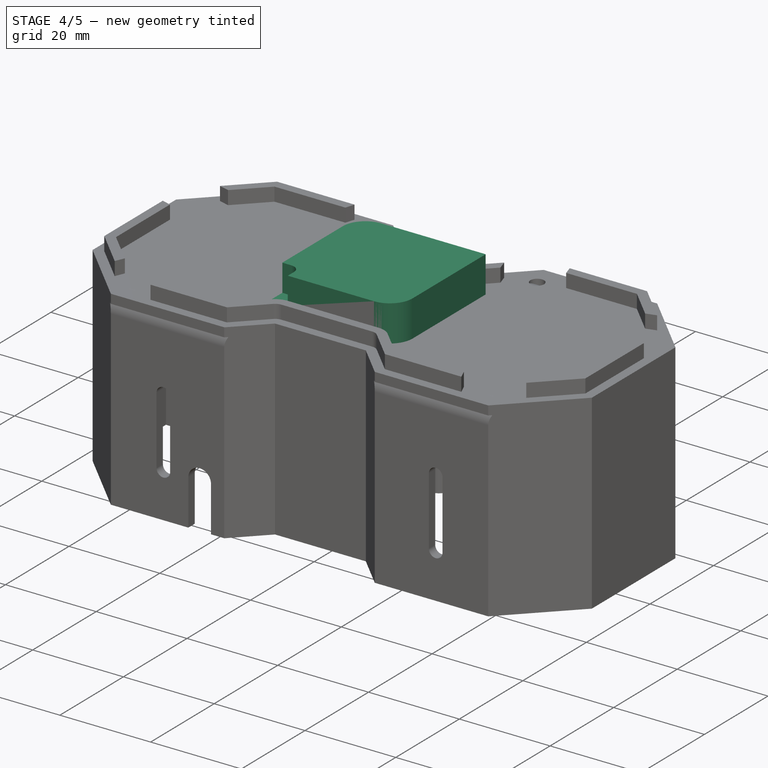
[diagram: stage 4 of 5 — iso view after this stage's code; geometry added in this stage tinted green]
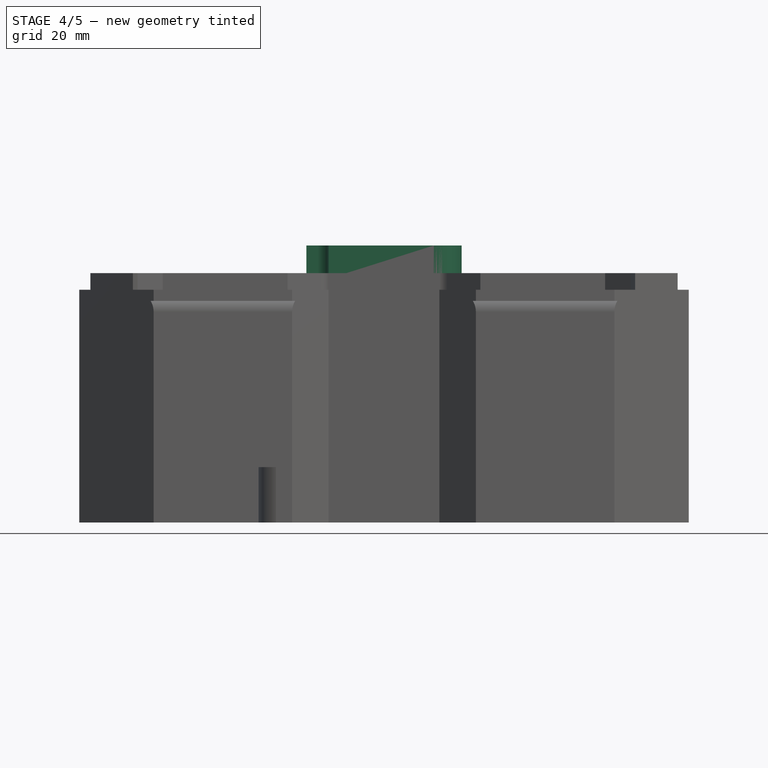
[diagram: stage 4 of 5 — front view after this stage's code; geometry added in this stage tinted green]
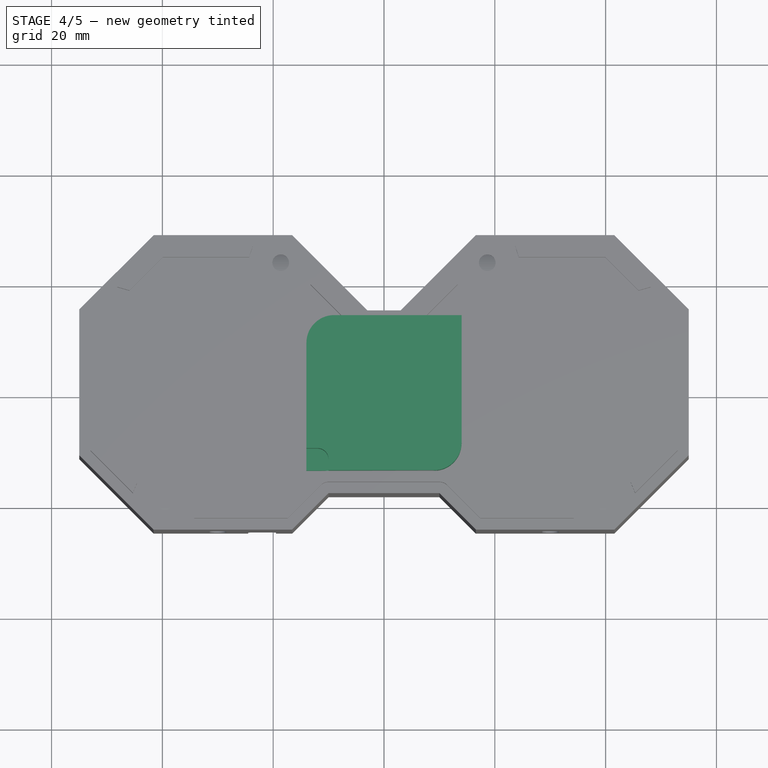
[diagram: stage 4 of 5 — top view after this stage's code; geometry added in this stage tinted green]
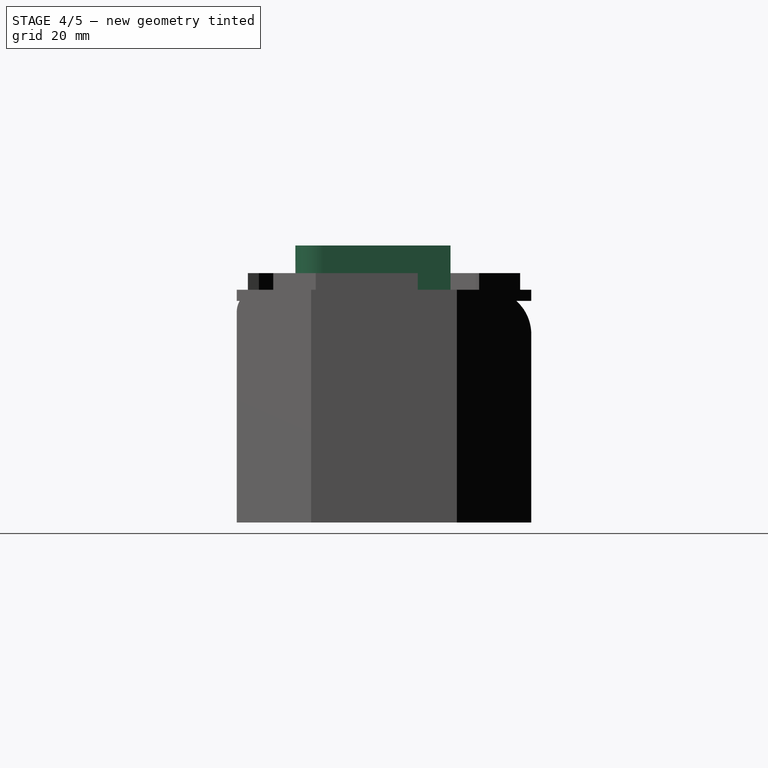
[diagram: stage 4 of 5 — right view after this stage's code; geometry added in this stage tinted green]
FEATURE [Sketcher::SketchObject] Sketch
  ArcFitTolerance = 1e-06
  AttachmentSupport = -> [XY_Plane]
  FullyConstrained = true
  MakeInternals = false
  MapMode = 5
  sketch-geometry (5):
    g0: LineSegment StartX=-14 StartY=-14 StartZ=0 EndX=14 EndY=-14 EndZ=0
    g1: LineSegment StartX=14 StartY=-14 StartZ=0 EndX=14 EndY=14 EndZ=0
    g2: LineSegment StartX=14 StartY=14 StartZ=0 EndX=-14 EndY=14 EndZ=0
    g3: LineSegment StartX=-14 StartY=14 StartZ=0 EndX=-14 EndY=-14 EndZ=0
    g4: GeomPoint [constr] X=0 Y=0 Z=0
  constraints (12):
    c: Coincident(g0,g1)
    c: Coincident(g1,g2)
    c: Coincident(g2,g3)
    c: Coincident(g3,g0)
    c: Horizontal(g0)
    c: Horizontal(g2)
    c: Vertical(g1)
    c: Vertical(g3)
    c: Symmetric(g2,g0,g4)
    c: Distance(g1,g3) = 28
    c: Distance(g0,g2) = 28
    c: Coincident(g4,g-1)
FEATURE [PartDesign::Pad] Pad
  Direction = (0,0,1)
  Length = 10
  Length2 = 10
  Profile = -> Sketch
  ReferenceAxis = -> Sketch [N_Axis]
  Refine = true
  Suppressed = false
  Type = 0
FEATURE [PartDesign::Fillet] Fillet
  Base = -> Pad [Edge8,Edge2]
  BaseFeature = -> Pad
  Radius = 5
  Refine = true
  SupportTransform = false
  Suppressed = false
  UseAllEdges = false
FEATURE [Sketcher::SketchObject] Sketch001
  ArcFitTolerance = 1e-06
  AttachmentSupport = -> [Fillet]
  ExternalGeometry = -> [Fillet]
  FullyConstrained = true
  MakeInternals = false
  MapMode = 5
  Placement = pos=(0,0,10) rot=(0,0,1;0rad)
  sketch-geometry (5):
    g0: LineSegment StartX=-14 StartY=-14 StartZ=0 EndX=-10 EndY=-14 EndZ=0
    g1: ArcOfCircle CenterX=-12 CenterY=-12 CenterZ=0 NormalX=0 NormalY=0 NormalZ=1 AngleXU=0 Radius=2 StartAngle=3.26795e-07 EndAngle=1.5708
    g2: LineSegment StartX=-14 StartY=-10 StartZ=0 EndX=-12 EndY=-10 EndZ=0
    g3: LineSegment StartX=-10 StartY=-12 StartZ=0 EndX=-10 EndY=-14 EndZ=0
    g4: LineSegment StartX=-14 StartY=-10 StartZ=0 EndX=-14 EndY=-14 EndZ=0
  constraints (15):
    c: PointOnObject(g2,g-4)
    c: PointOnObject(g0,g-3)
    c: Radius(g1) = 2
    c: Angle(g1) = 1.5708
    c: Coincident(g2,g1)
    c: Coincident(g3,g1)
    c: Coincident(g3,g0)
    c: Horizontal(g2)
    c: Vertical(g3)
    c: DistanceX(g0,g0) = 4
    c: Coincident(g0,g-4)
    c: Coincident(g4,g2)
    c: Coincident(g4,g0)
    c: DistanceY(g4,g4) = 4
    c: Vertical(g1,g1)
FEATURE [PartDesign::Pocket] Pocket
  BaseFeature = -> Fillet
  Direction = (0,0,-1)
  Length = 6
  Length2 = 5
  Profile = -> Sketch001
  ReferenceAxis = -> Sketch001 [N_Axis]
  Refine = true
  Suppressed = false
  Type = 0
FEATURE [Sketcher::SketchObject] Sketch002
  ArcFitTolerance = 1e-06
  AttachmentSupport = -> [Pocket]
  ExternalGeometry = -> [Pocket]
  FullyConstrained = true
  MakeInternals = false
  MapMode = 5
  Placement = pos=(0,0,0) rot=(1,0,0;3.14159rad)
  sketch-geometry (5):
    g0: ArcOfCircle CenterX=-12 CenterY=12 CenterZ=0 NormalX=0 NormalY=0 NormalZ=1 AngleXU=0 Radius=2 StartAngle=4.71239 EndAngle=6.28319
    g1: LineSegment StartX=-10 StartY=12 StartZ=0 EndX=-10 EndY=14 EndZ=0
    g2: LineSegment StartX=-10 StartY=14 StartZ=0 EndX=-14 EndY=14 EndZ=0
    g3: LineSegment StartX=-14 StartY=14 StartZ=0 EndX=-14 EndY=10 EndZ=0
    g4: LineSegment StartX=-14 StartY=10 StartZ=0 EndX=-12 EndY=10 EndZ=0
  constraints (14):
    c: Radius(g0) = 2
    c: Angle(g0) = 1.5708
    c: Horizontal(g0,g0)
    c: Tangent(g0,g1) = -1.5708
    c: Coincident(g1,g2)
    c: Coincident(g2,g-4)
    c: Horizontal(g2)
    c: Coincident(g2,g3)
    c: PointOnObject(g3,g-4)
    c: Coincident(g3,g4)
    c: Coincident(g4,g0)
    c: Horizontal(g4)
    c: DistanceX(g2,g2) = 4
    c: DistanceY(g3,g3) = 4
FEATURE [PartDesign::Pocket] Pocket001
  BaseFeature = -> Pocket
  Direction = (0,0,1)
  Length = 2
  Length2 = 5
  Profile = -> Sketch002
  ReferenceAxis = -> Sketch002 [N_Axis]
  Refine = true
  Suppressed = false
  Type = 0
FEATURE [PartDesign::Mirrored] Mirrored
  BaseFeature = -> Pad006
  MirrorPlane = -> Sketch013 [V_Axis]
  Originals = -> [Pad006]
  Refine = true
  Suppressed = false
  TransformMode = 0
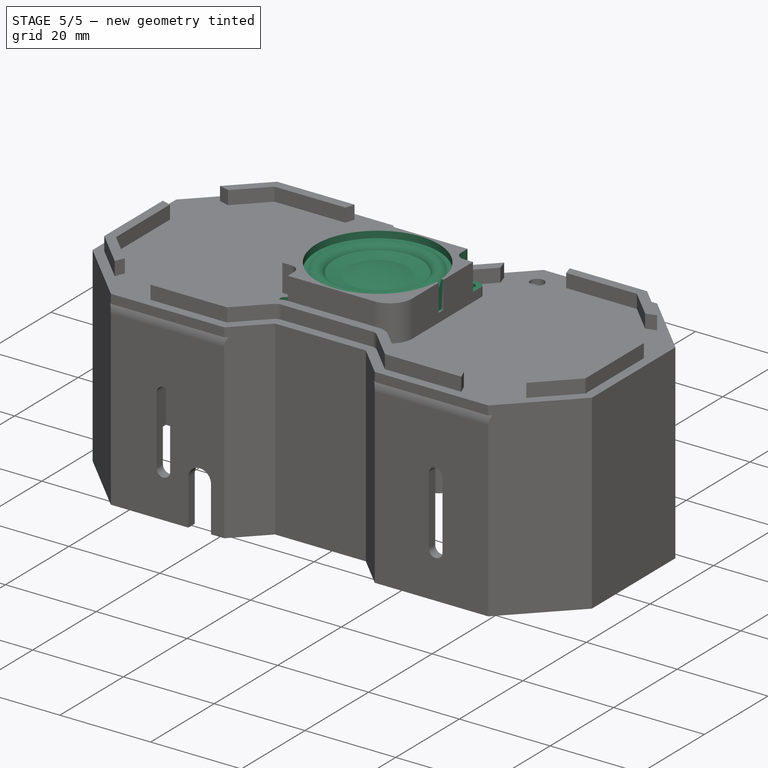
[diagram: stage 5 of 5 — iso view after this stage's code; geometry added in this stage tinted green]
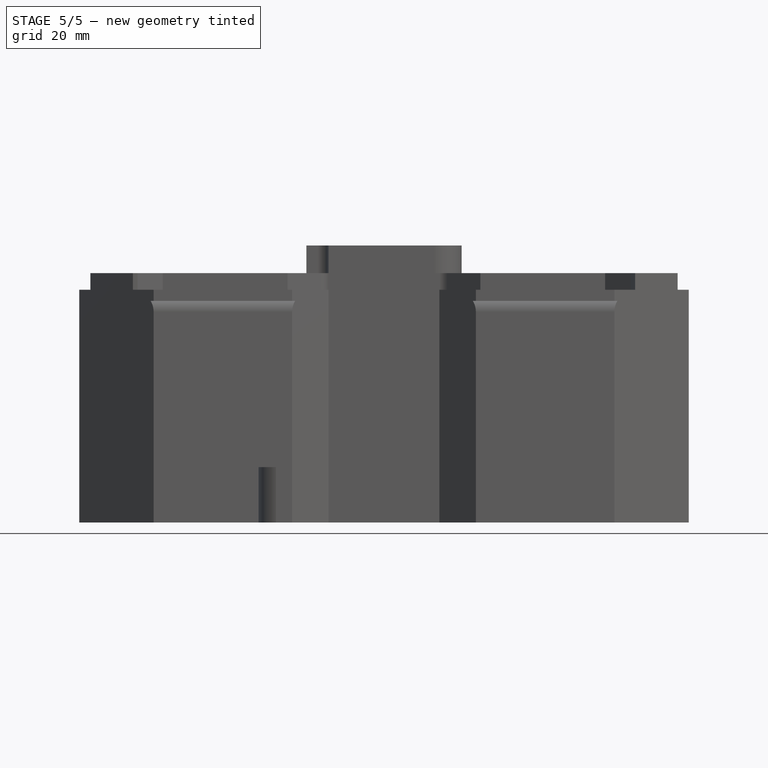
[diagram: stage 5 of 5 — front view after this stage's code; geometry added in this stage tinted green]
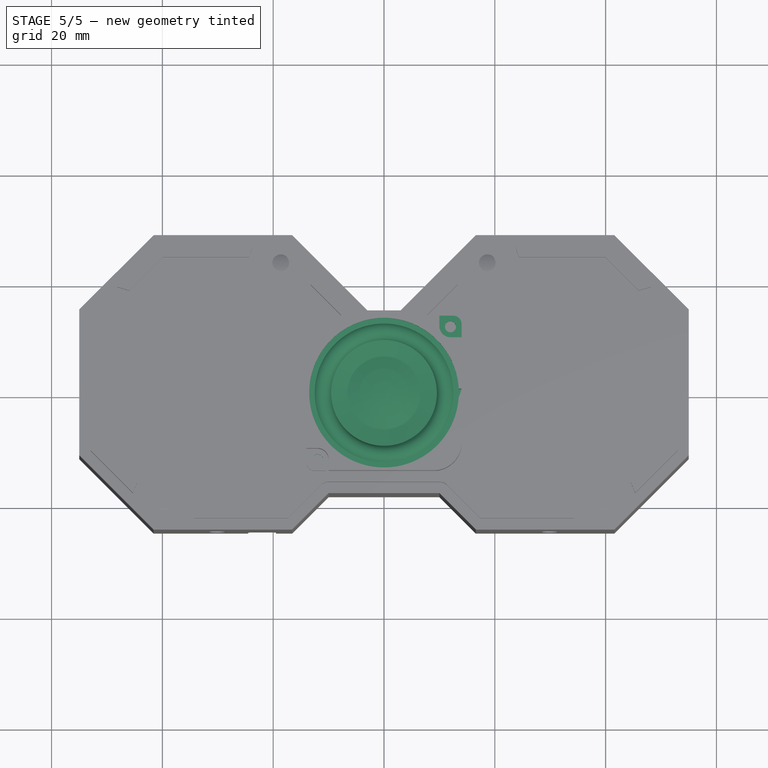
[diagram: stage 5 of 5 — top view after this stage's code; geometry added in this stage tinted green]
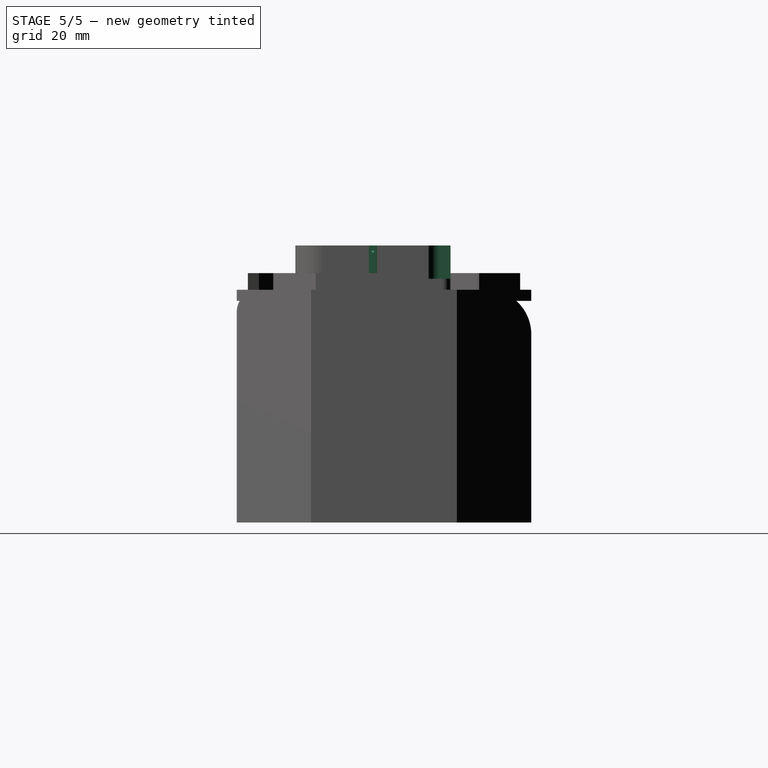
[diagram: stage 5 of 5 — right view after this stage's code; geometry added in this stage tinted green]
FEATURE [PartDesign::Fillet] Fillet001
  Base = -> Pocket001 [Edge5]
  BaseFeature = -> Pocket001
  Radius = 1.5
  Refine = true
  SupportTransform = false
  Suppressed = false
  UseAllEdges = false
FEATURE [Sketcher::SketchObject] Sketch003
  ArcFitTolerance = 1e-06
  AttachmentSupport = -> [Fillet001]
  ExternalGeometry = -> [Fillet001]
  FullyConstrained = true
  MakeInternals = false
  MapMode = 5
  Placement = pos=(0,0,4) rot=(0,0,1;0rad)
  sketch-geometry (1):
    g0: Circle CenterX=-12 CenterY=-12 CenterZ=0 NormalX=0 NormalY=0 NormalZ=1 AngleXU=0 Radius=1
  constraints (2):
    c: Diameter(g0) = 2
    c: Coincident(g0,g-3)
FEATURE [PartDesign::Pocket] Pocket002
  BaseFeature = -> Fillet001
  Direction = (0,0,-1)
  Length = 5
  Length2 = 5
  Profile = -> Sketch003
  ReferenceAxis = -> Sketch003 [N_Axis]
  Refine = true
  Suppressed = false
  Type = 0
FEATURE [PartDesign::PolarPattern] PolarPattern
  Angle = 360
  Axis = -> Sketch001 [N_Axis]
  BaseFeature = -> Pocket002
  Mode = 0
  Occurrences = 2
  Offset = 120
  Originals = -> [Pocket,Pocket001,Fillet001,Pocket002]
  Refine = true
  Suppressed = false
  TransformMode = 0
FEATURE [Sketcher::SketchObject] Sketch004
  ArcFitTolerance = 1e-06
  AttachmentSupport = -> [PolarPattern]
  FullyConstrained = true
  MakeInternals = false
  MapMode = 5
  Placement = pos=(0,0,10) rot=(0,0,1;0rad)
  sketch-geometry (1):
    g0: Circle CenterX=0 CenterY=0 CenterZ=0 NormalX=0 NormalY=0 NormalZ=1 AngleXU=0 Radius=13.5
  constraints (2):
    c: Diameter(g0) = 27
    c: Coincident(g0,g-1)
FEATURE [PartDesign::Pocket] Pocket003
  BaseFeature = -> PolarPattern
  Direction = (0,0,-1)
  Length = 3
  Length2 = 5
  Profile = -> Sketch004
  ReferenceAxis = -> Sketch004 [N_Axis]
  Refine = true
  Suppressed = false
  Type = 0
FEATURE [Sketcher::SketchObject] Sketch005
  ArcFitTolerance = 1e-06
  AttachmentSupport = -> [XZ_Plane]
  ExternalGeometry = -> [Pocket003]
  FullyConstrained = false
  MakeInternals = false
  MapMode = 5
  Placement = pos=(0,0,0) rot=(1,0,0;1.5708rad)
  sketch-geometry (12):
    g0: ArcOfCircle CenterX=-11.1859 CenterY=7.33653 CenterZ=0 NormalX=0 NormalY=0 NormalZ=1 AngleXU=0 Radius=1.75515 StartAngle=0.367263 EndAngle=2.41693
    g1: LineSegment StartX=-9.54777 StartY=7.96674 StartZ=0 EndX=-6.5903 EndY=7.46344 EndZ=0
    g2: Circle [constr] CenterX=-6.5903 CenterY=7.46344 CenterZ=0 NormalX=0 NormalY=0 NormalZ=1 AngleXU=0 Radius=1
    g3: Circle [constr] CenterX=-3.39793 CenterY=8.43344 CenterZ=0 NormalX=0 NormalY=0 NormalZ=1 AngleXU=0 Radius=1
    g4: Circle [constr] CenterX=0 CenterY=8.45297 CenterZ=0 NormalX=0 NormalY=0 NormalZ=1 AngleXU=0 Radius=1
    g5: BSplineCurve PolesCount=3 KnotsCount=2 Degree=2 IsPeriodic=0
    g6: GeomPoint [constr] X=-6.5903 Y=7.46344 Z=0
    g7: GeomPoint [constr] X=0 Y=8.45297 Z=0
    g8: LineSegment StartX=0 StartY=8.45297 StartZ=0 EndX=0 EndY=6.19613 EndZ=0
    g9: LineSegment StartX=-12.5 StartY=8.5 StartZ=0 EndX=-14 EndY=8.5 EndZ=0
    g10: LineSegment StartX=-14 StartY=8.5 StartZ=0 EndX=-14 EndY=6.19613 EndZ=0
    g11: LineSegment StartX=0 StartY=6.19613 StartZ=0 EndX=-14 EndY=6.19613 EndZ=0
  constraints (25):
    c: PointOnObject(g8,g-2)
    c: Coincident(g1,g0)
    c: Weight(g2) = 1
    c: Equal(g2,g3)
    c: Equal(g2,g4)
    c: InternalAlignment(g2,g5)
    c: InternalAlignment(g3,g5)
    c: InternalAlignment(g4,g5)
    c: InternalAlignment(g6,g5)
    c: InternalAlignment(g7,g5)
    c: Coincident(g2,g1)
    c: PointOnObject(g4,g-2)
    c: Coincident(g8,g5)
    c: Distance(g1,g1) = 3
    c: Coincident(g9,g0)
    c: PointOnObject(g9,g-3)
    c: Horizontal(g9)
    c: Coincident(g10,g9)
    c: PointOnObject(g10,g-3)
    c: Coincident(g8,g11)
    c: Coincident(g11,g10)
    c: Horizontal(g11)
    c: Distance(g-3,g9) = 1.5
    c: DistanceX(g9,g9) = 1.5
    c: Distance(g0,g0) = 3
FEATURE [PartDesign::Revolution] Revolution
  Angle = 360
  Angle2 = 60
  Axis = (0,2e-16,1)
  Base = (0,0,0)
  BaseFeature = -> Pocket003
  Profile = -> Sketch005
  ReferenceAxis = -> Sketch005 [V_Axis]
  Refine = true
  Suppressed = false
  Type = 0
FEATURE [Sketcher::SketchObject] Sketch006
  ArcFitTolerance = 1e-06
  AttachmentSupport = -> [Revolution]
  ExternalGeometry = -> [Revolution]
  FullyConstrained = true
  MakeInternals = false
  MapMode = 5
  Placement = pos=(14,0,0) rot=(0.57735,0.57735,0.57735;2.0944rad)
  sketch-geometry (4):
    g0: LineSegment StartX=-0.75 StartY=10 StartZ=0 EndX=-0.75 EndY=4 EndZ=0
    g1: LineSegment StartX=-0.75 StartY=4 StartZ=0 EndX=0.75 EndY=4 EndZ=0
    g2: LineSegment StartX=0.75 StartY=4 StartZ=0 EndX=0.75 EndY=10 EndZ=0
    g3: LineSegment StartX=0.75 StartY=10 StartZ=0 EndX=-0.75 EndY=10 EndZ=0
  constraints (12):
    c: Coincident(g0,g1)
    c: Coincident(g1,g2)
    c: Coincident(g2,g3)
    c: Coincident(g3,g0)
    c: Vertical(g0)
    c: Vertical(g2)
    c: Horizontal(g1)
    c: Horizontal(g3)
    c: PointOnObject(g0,g-3)
    c: DistanceX(g1,g1) = 1.5
    c: Distance(g1,g-2) = 0.75
    c: DistanceY(g0,g0) = 6
FEATURE [PartDesign::Pocket] Pocket004
  BaseFeature = -> Revolution
  Direction = (-1,0,0)
  Length = 0.5
  Length2 = 5
  Profile = -> Sketch006
  ReferenceAxis = -> Sketch006 [N_Axis]
  Refine = true
  Suppressed = false
  Type = 0
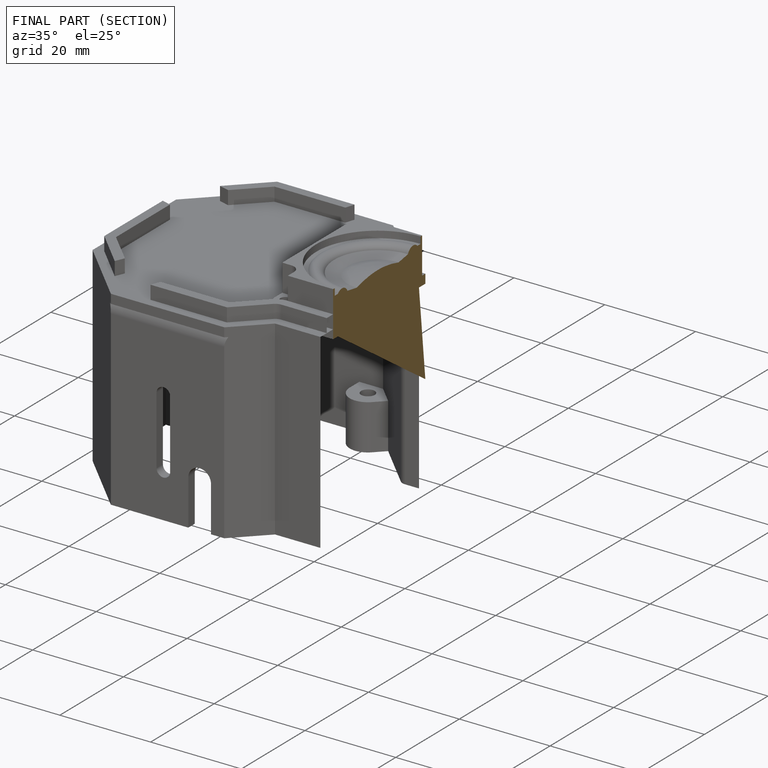
[diagram: finished part — half-section view (interior)]
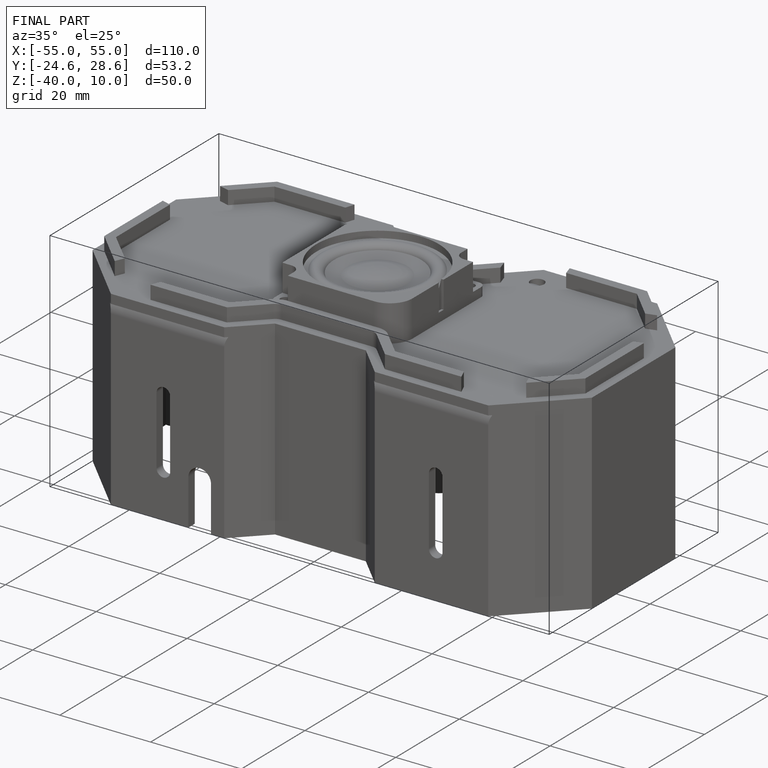
[diagram: finished part — iso view with bounding-box wireframe]
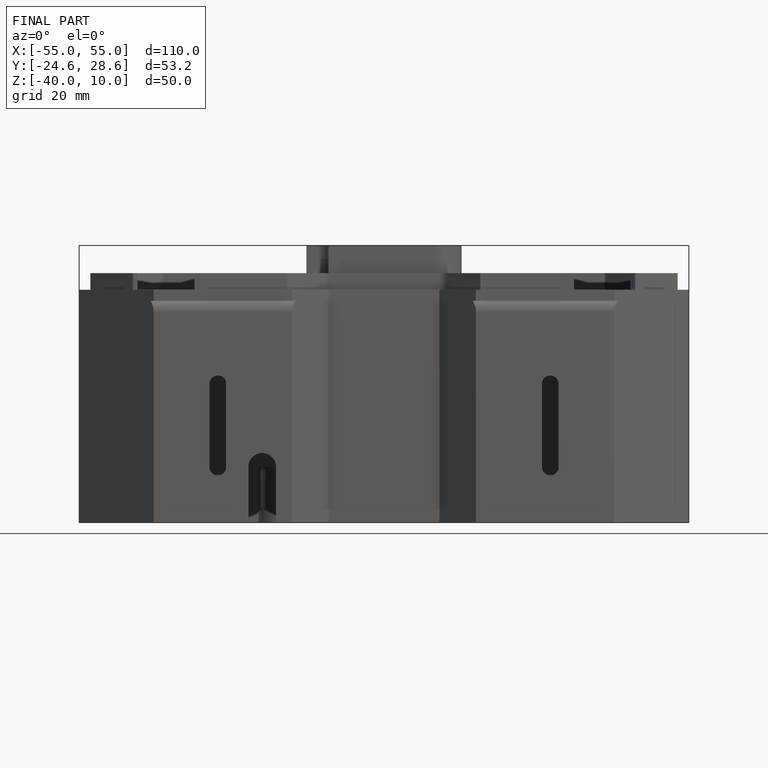
[diagram: finished part — front view with bounding-box wireframe]
